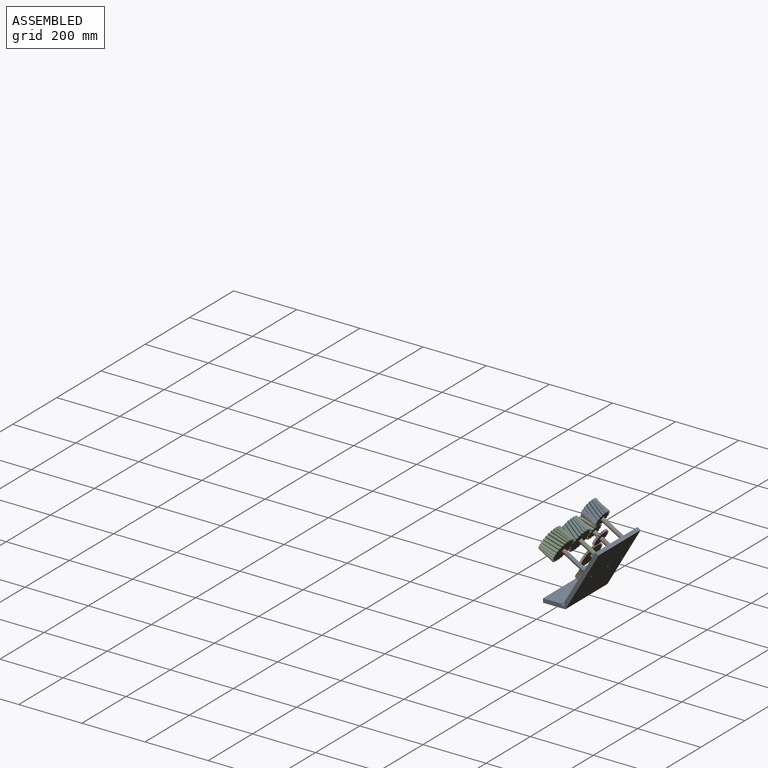
[diagram: assembled view]
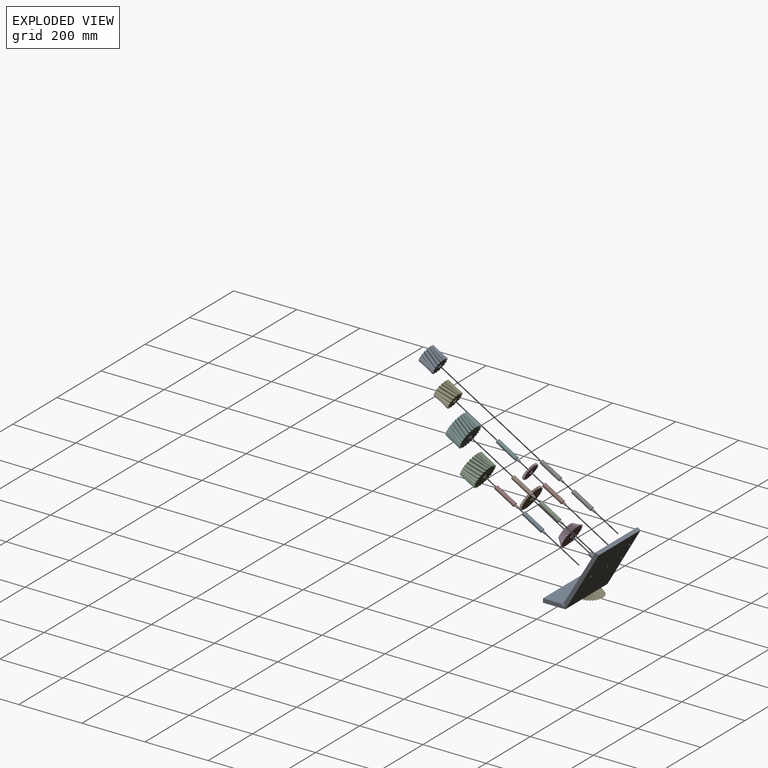
[diagram: exploded view]
GUIDED TOUR — MATED ASSEMBLY (Onshape document b28ac6cc2bc0bf8509f727c4, AutoMate assembly b28ac6cc2bc0bf8509f727c4_57bdf5e7283f3f6957dac1f3_2d047fa930e552a47f79e202_default)

This assembly has 17 components, labeled P0..P16 below (a component is one placed occurrence of a part; the same part can appear more than once), held together by 16 mates. A mate is a constraint between two components; its type names the relative motion it leaves free:
  FASTENED — locks the two components together rigidly (no relative motion),
  REVOLUTE — leaves rotation about the listed axis free (a hinge).
Axis/direction vectors are unit vectors and 'through' points are millimeter coordinates, both in the assembly's world frame.

MATES
  1. REVOLUTE "Revolute 7": P12 <-> P13, axis (-0.864, 0.000, 0.504) through (-116.95, 79.64, 92.24) mm
  2. REVOLUTE "Revolute 5": P9 <-> P0, axis (-0.864, 0.000, 0.504) through (-87.12, 79.64, 1.38) mm
  3. REVOLUTE "Revolute 6": P11 <-> P7, axis (-0.864, 0.000, 0.504) through (-56.62, 79.64, 57.04) mm
  4. REVOLUTE "Revolute 8": P16 <-> P14, axis (-0.864, 0.000, 0.504) through (-91.36, 79.64, 136.12) mm
  5. REVOLUTE "Revolute 2": P4 <-> P0, axis (0.000, 0.000, -1.000) through (-85.58, 79.64, -65.93) mm
  6. FASTENED "Fastened 5": P6 <-> P0, direction (-0.864, 0.000, 0.504) through (29.31, 79.64, 65.73) mm
  7. REVOLUTE "Revolute 1": P3 <-> P0, axis (0.864, 0.000, -0.504) through (-28.25, 79.64, -32.96) mm
  8. FASTENED "Fastened 4": P7 <-> P0, direction (0.864, 0.000, -0.504) through (3.72, 79.64, 21.85) mm
  9. FASTENED "Fastened 6": P15 <-> P8, direction (0.864, 0.000, -0.504) through (-56.62, -60.06, 57.04) mm
  10. REVOLUTE "Revolute 4": P5 <-> P1, axis (-0.864, 0.000, 0.504) through (-116.95, 16.14, 92.24) mm
  11. FASTENED "Fastened 2": P8 <-> P0, direction (0.864, 0.000, -0.504) through (3.72, -60.06, 21.85) mm
  12. FASTENED "Fastened 9": P14 <-> P6, direction (0.864, 0.000, -0.504) through (-31.02, 79.64, 100.92) mm
  13. REVOLUTE "Revolute 3": P2 <-> P15, axis (-0.864, 0.000, 0.504) through (-116.95, -60.06, 92.24) mm
  14. FASTENED "Fastened 3": P10 <-> P0, direction (0.864, 0.000, -0.504) through (3.72, 16.14, 21.85) mm
  15. FASTENED "Fastened 7": P13 <-> P7, direction (0.864, 0.000, -0.504) through (-56.62, 79.64, 57.04) mm
  16. FASTENED "Fastened 8": P1 <-> P10, direction (0.864, 0.000, -0.504) through (-56.62, 16.14, 57.04) mm

ASSEMBLY ORDER
  1. P0 — the base component [order heuristic]
  2. P3 — core [order heuristic]
  3. P4 — core [order heuristic]
  4. P6 — core [order heuristic]
  5. P7 — core [order heuristic]
  6. P8 — core [order heuristic]
  7. P10 — core [order heuristic]
  8. P1 — core [order heuristic]
  9. P11 — core [order heuristic]
  10. P13 — core [order heuristic]
  11. P14 — core [order heuristic]
  12. P15 — core [order heuristic]
  13. P2 — core [order heuristic]
  14. P5 — core [order heuristic]
  15. P12 — core [order heuristic]
  16. P16 — core [order heuristic]
  17. P9 [order verified]
Order-tag legend:
  [order verified] — this step's position reverses a verified removal order: the component was checked to insert without passing through the ones already placed.
  [order heuristic] — the first 16 components form the assembly's core: parts whose collision-free extraction could not be verified, listed in mate-graph order.

Of the 17 components, 11 carry the full construction recipe — the FeatureScript program that regenerates the part's solid from scratch; the rest are supplied as boundary geometry only.
Because this assembly has more than 12 components, the tour below covers the 12 most significant ones individually (every recipe-attached component first, then the largest by part volume), in assembly order; the remaining 5 are summarized together in a grouped section at the end.
Each toured component is shown spotlighted twice — in the assembled view, then in the exploded view, where a leader line traces a displaced component back to its assembled socket (saturated green if recipe-attached, orange if geometry-only; every other component desaturated gray) — followed by its recipe or geometry summary and the mates that hold it.
NOTE — this tour is split across 2 documents so each fits a 32k-token context. This is document 1: the component sections continue in the remaining 1 document, each repeating the header above.
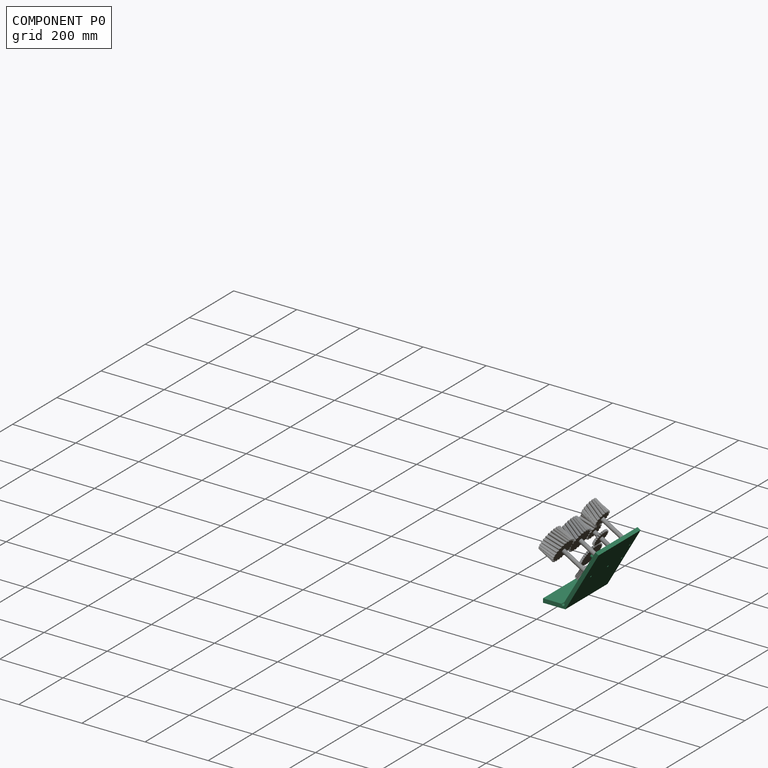
[diagram: component P0 — assembled]
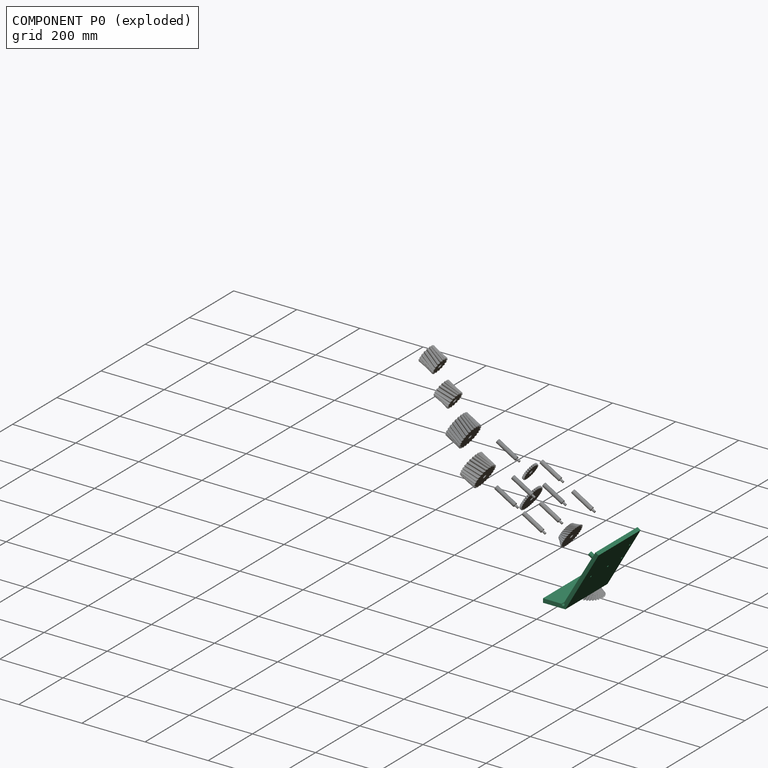
[diagram: component P0 — exploded]
COMPONENT P0 — recipe-attached (CADFS 00306251, mesh-verified: the recipe's output STEP matches this component's geometry to below the mesh-comparison resolution (tessellation chordal tolerance ~0.481 mm)).
Held by: REVOLUTE mate "Revolute 5" to P9; REVOLUTE mate "Revolute 2" to P4; FASTENED mate "Fastened 5" to P6; REVOLUTE mate "Revolute 1" to P3; FASTENED mate "Fastened 4" to P7; FASTENED mate "Fastened 2" to P8; FASTENED mate "Fastened 3" to P10.
Construction recipe (FeatureScript — the CAD program that rebuilds this solid; sketch coordinates are in the units given by the * unit suffixes, e.g. mm):

FeatureScript 1511;
import(path : "onshape/std/geometry.fs", version : "1511.0");
import(path : "onshape/std/common.fs", version : "1511.0");
const mm = millimeter;
const VERTEX = EntityType.VERTEX;
const EDGE = EntityType.EDGE;
const FACE = EntityType.FACE;
const BODY = EntityType.BODY;
function v(x, y){return vector(x, y);}
function OD(order){return orderDisambiguation(order);}
function OSD(set){return originalSetDisambiguation(set);}
function TD(topology){return topologyDisambiguation(topology);}
function TDD(query){return trueDependencyDisambiguation(query);}
function sQuery(a, b, c) {return sketchEntityQuery(a, b, c);}

annotation { "Feature Type Name" : "Feature", "Feature Type Description" : "" }
export const myFeature = defineFeature(function(context is Context, id is Id, definition is map)
    precondition{}
    {
        {
            var Q0;
            Q0=qCreatedBy(makeId("Front.planeOp"),FACE);
            var sketch = newSketch(context, id + "F0", { "sketchPlane" : qUnion([Q0])});
            skLineSegment(sketch, "E0", {"start": v(0, 0) * mm, "end": v(70.84, 0) * mm});
            skLineSegment(sketch, "E1.0", {"start": v(0, 12.7) * mm, "end": v(58.74, 12.7) * mm});
            skLineSegment(sketch, "E2", {"start": v(0, 0) * mm, "end": v(0, 12.7) * mm});
            skArc(sketch, "E3", {"start": v(58.74, 12.7) * mm, "mid": v(65.87, 8.57) * mm, "end": v(65.9, 16.81) * mm});
            skLineSegment(sketch, "E4", {"start": v(70.84, 0) * mm, "end": v(176.11, 182.33) * mm});
            skLineSegment(sketch, "E5", {"start": v(176.11, 182.33) * mm, "end": v(165.9, 188.23) * mm});
            skLineSegment(sketch, "E6", {"start": v(165.9, 188.23) * mm, "end": v(65.9, 16.81) * mm});
            skSolve(sketch);
        }
        {
            var Q0;
            Q0 = qSketchRegion(id + "F0", true);
            extrude(context, id + "F1", {"entities" : qUnion([Q0]), "depth" : 190.5 * mm});
        }
        {
            var Q0;
            Q0=makeQuery(id+"F1.opExtrude","SWEPT_FACE",FACE,{"disambiguationData":[OSD([sQuery(id+"F0.wireOp",EDGE,"E1.0")])]});
            var sketch = newSketch(context, id + "F2", { "sketchPlane" : qUnion([Q0])});
            skLineSegment(sketch, "E7", {"start": v(0, 0) * mm, "end": v(25.4, 0) * mm});
            skLineSegment(sketch, "E8", {"start": v(25.4, 0) * mm, "end": v(25.4, -12.7) * mm});
            skCircle(sketch, "E9", {"center": v(25.4, -12.7) * mm, "radius": 6.35 * mm});
            skSolve(sketch);
        }
        {
            var Q0;
            Q0 = qSketchRegion(id + "F2", true);
            extrude(context, id + "F3", {"entities" : qUnion([Q0]), "operationType" : NewBodyOperationType.ADD, "depth" : 22 * mm});
        }
        {
            var Q0;
            Q0=makeQuery(id+"F1.opExtrude","SWEPT_FACE",FACE,{"disambiguationData":[OSD([sQuery(id+"F0.wireOp",EDGE,"E6")])]});
            var sketch = newSketch(context, id + "F4", { "sketchPlane" : qUnion([Q0])});
            skCircle(sketch, "E10", {"center": v(12.7, 195.38) * mm, "radius": 3.17 * mm});
            skCircle(sketch, "E11", {"center": v(12.7, 144.58) * mm, "radius": 3.18 * mm});
            skCircle(sketch, "E12", {"center": v(76.2, 144.58) * mm, "radius": 3.18 * mm});
            skCircle(sketch, "E13", {"center": v(152.4, 144.58) * mm, "radius": 3.18 * mm});
            skCircle(sketch, "E14", {"center": v(12.7, 81.13) * mm, "radius": 6.35 * mm});
            skSolve(sketch);
        }
        {
            var Q0;
            Q0=makeQuery(id+"F4.imprint","IMPRINT",FACE,{"disambiguationData":[TD([[makeQuery(id+"F4.imprint","IMPRINT",EDGE,{"derivedFrom":sQuery(id+"F4.wireOp",EDGE,"E14")}),1.0]])]});
            extrude(context, id + "F5", {"entities" : qUnion([Q0]), "operationType" : NewBodyOperationType.ADD, "depth" : 68.15 * mm});
        }
        {
            var Q0;
            Q0=sQuery(id+"F4.wireOp",VERTEX,"E10.center");
            var Q1;
            Q1=sQuery(id+"F4.wireOp",VERTEX,"E11.center");
            var Q2;
            Q2=sQuery(id+"F4.wireOp",VERTEX,"E12.center");
            var Q3;
            Q3=sQuery(id+"F4.wireOp",VERTEX,"E13.center");
            var Q4;
            Q4=makeQuery(id+"F1.opExtrude","SWEPT_BODY",BODY,{"disambiguationData":[OSD([sQuery(id+"F0.wireOp",EDGE,"E0"),sQuery(id+"F0.wireOp",EDGE,"E1.0"),sQuery(id+"F0.wireOp",EDGE,"E2"),sQuery(id+"F0.wireOp",EDGE,"E3"),sQuery(id+"F0.wireOp",EDGE,"E4"),sQuery(id+"F0.wireOp",EDGE,"E5"),sQuery(id+"F0.wireOp",EDGE,"E6")])]});
            hole(context, id + "F6", {"style" : HoleStyle.SIMPLE, "endStyle" : HoleEndStyle.THROUGH, "holeDiameter" : 6.35 * mm, "tappedDepth" : 12.7 * mm, "tapClearance" : 3, "locations" : qUnion([Q0, Q1, Q2, Q3]), "scope" : qUnion([Q4])});
        }
    });
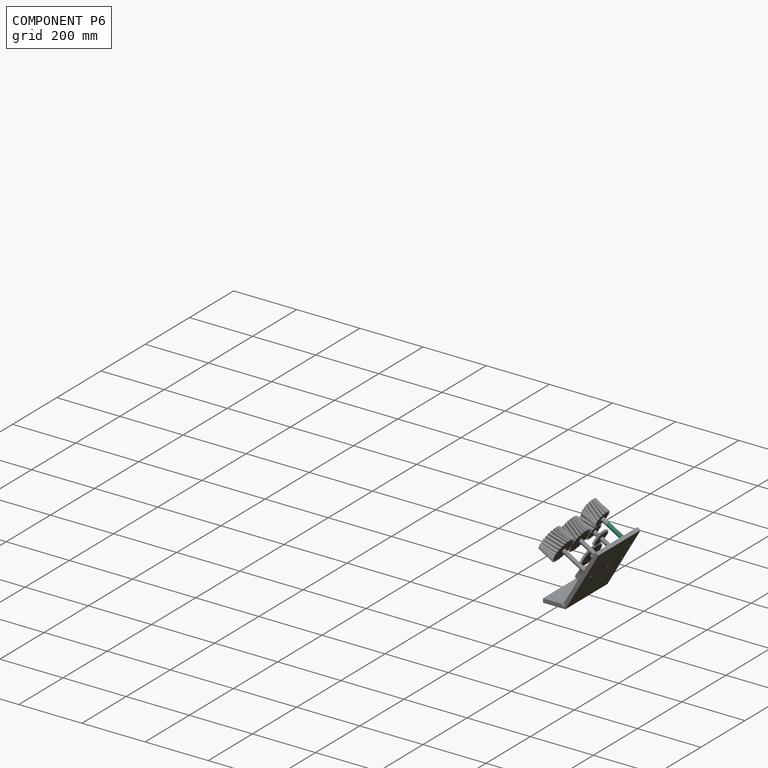
[diagram: component P6 — assembled]
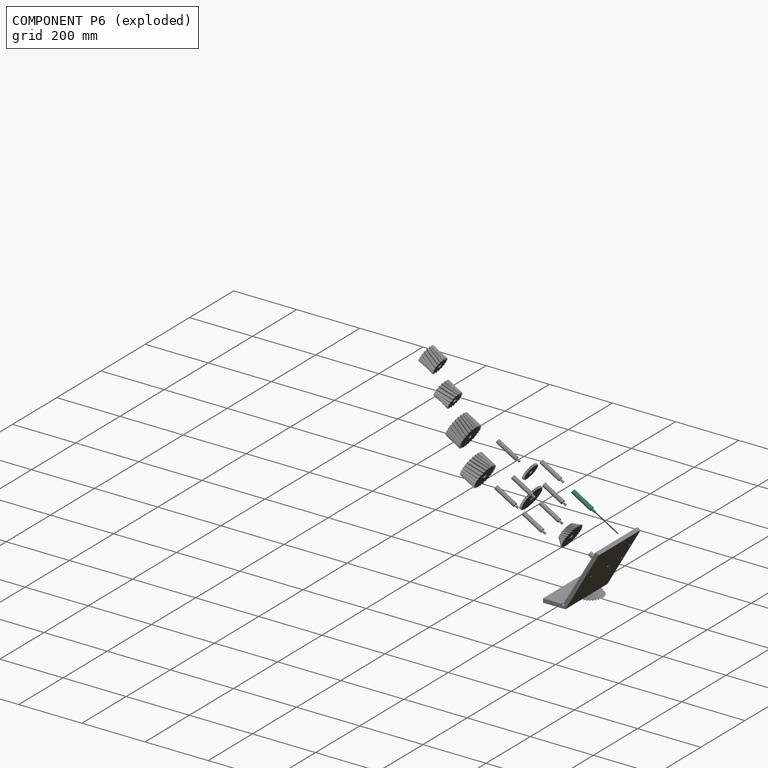
[diagram: component P6 — exploded]
COMPONENT P6 — same part as P1 (CADFS 00306252); its construction recipe is shown at P1.
Held by: FASTENED mate "Fastened 5" to P0; FASTENED mate "Fastened 9" to P14.
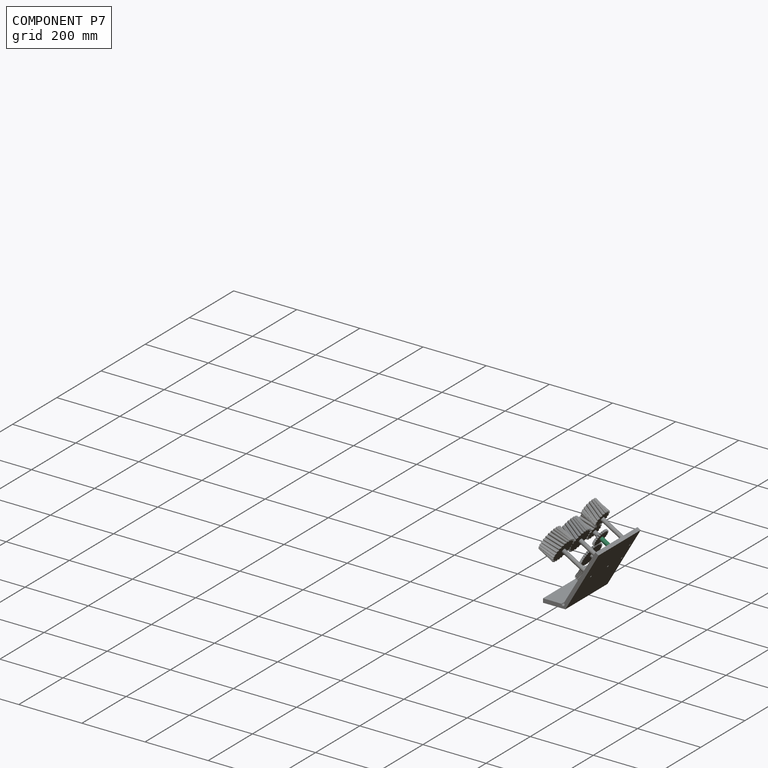
[diagram: component P7 — assembled]
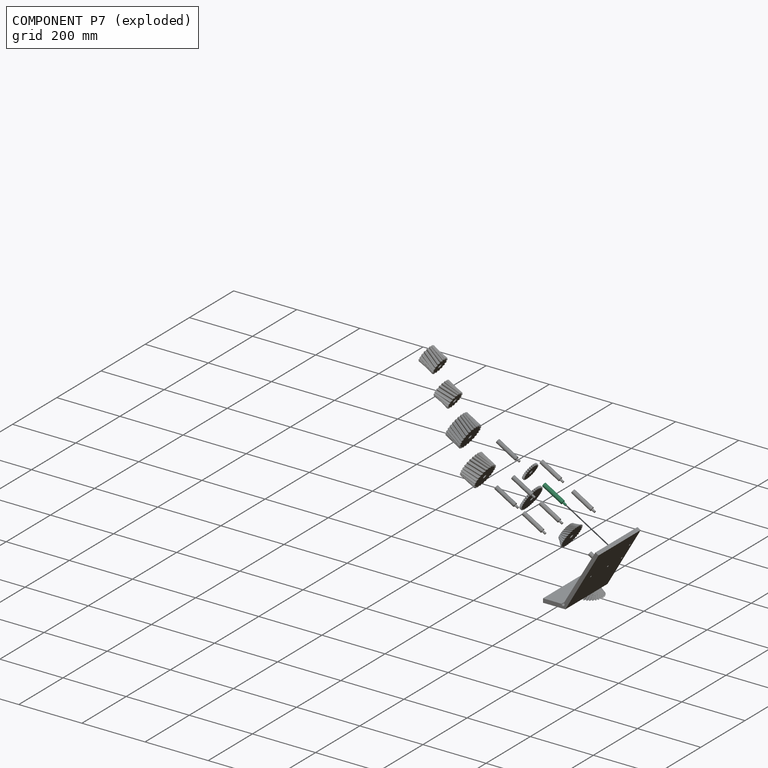
[diagram: component P7 — exploded]
COMPONENT P7 — same part as P1 (CADFS 00306252); its construction recipe is shown at P1.
Held by: REVOLUTE mate "Revolute 6" to P11; FASTENED mate "Fastened 4" to P0; FASTENED mate "Fastened 7" to P13.
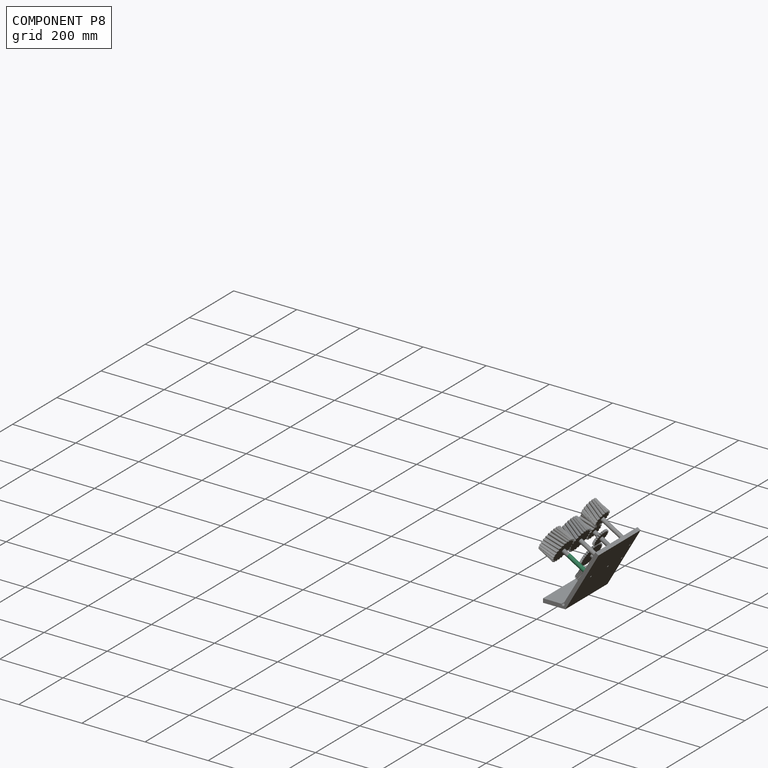
[diagram: component P8 — assembled]
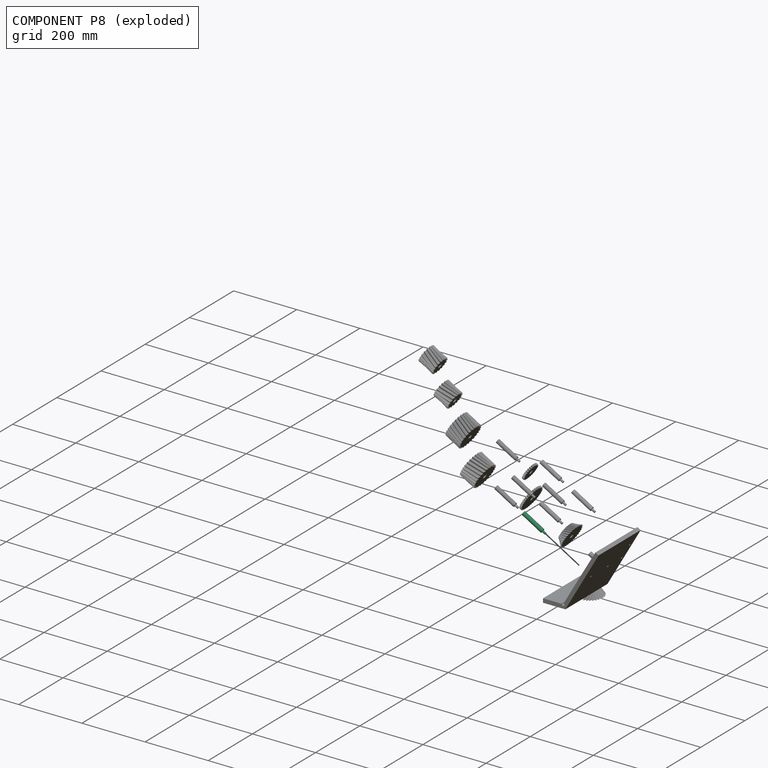
[diagram: component P8 — exploded]
COMPONENT P8 — same part as P1 (CADFS 00306252); its construction recipe is shown at P1.
Held by: FASTENED mate "Fastened 6" to P15; FASTENED mate "Fastened 2" to P0.
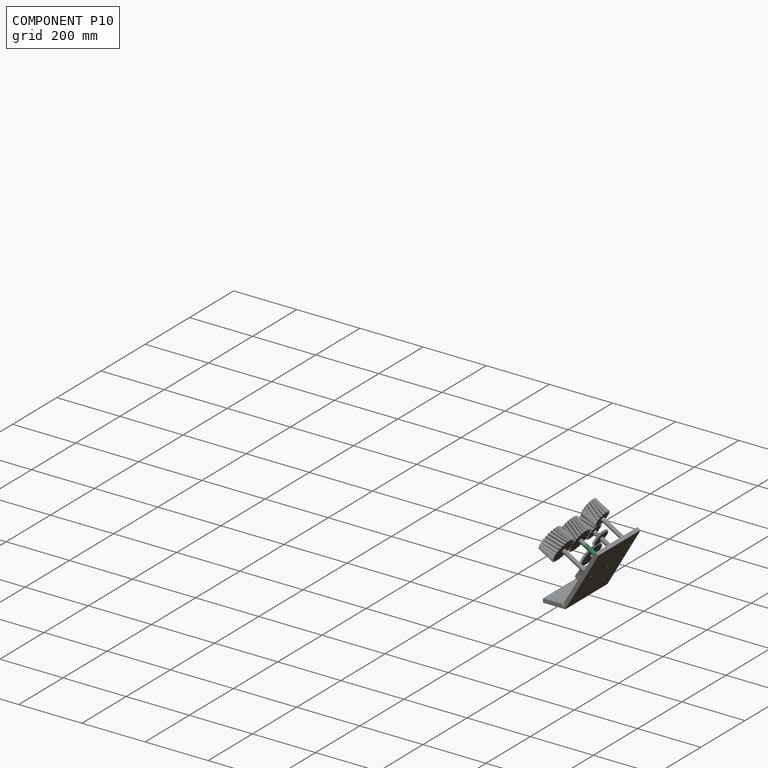
[diagram: component P10 — assembled]
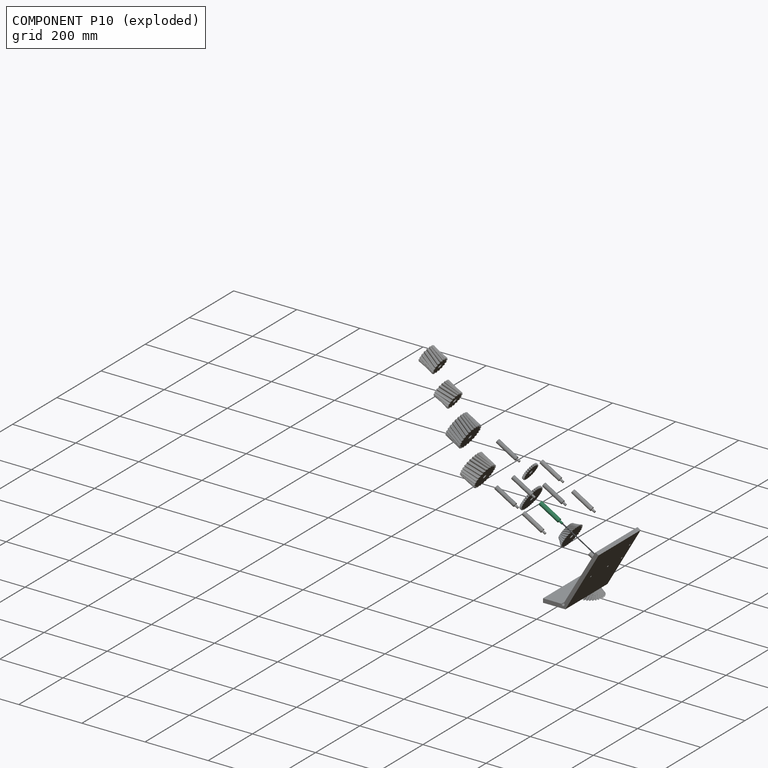
[diagram: component P10 — exploded]
COMPONENT P10 — same part as P1 (CADFS 00306252); its construction recipe is shown at P1.
Held by: FASTENED mate "Fastened 3" to P0; FASTENED mate "Fastened 8" to P1.
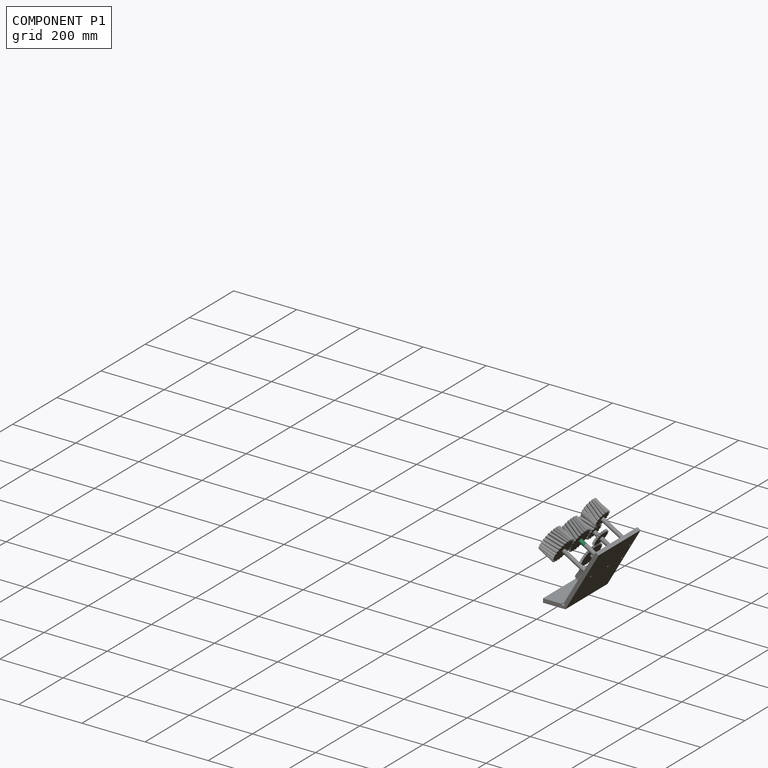
[diagram: component P1 — assembled]
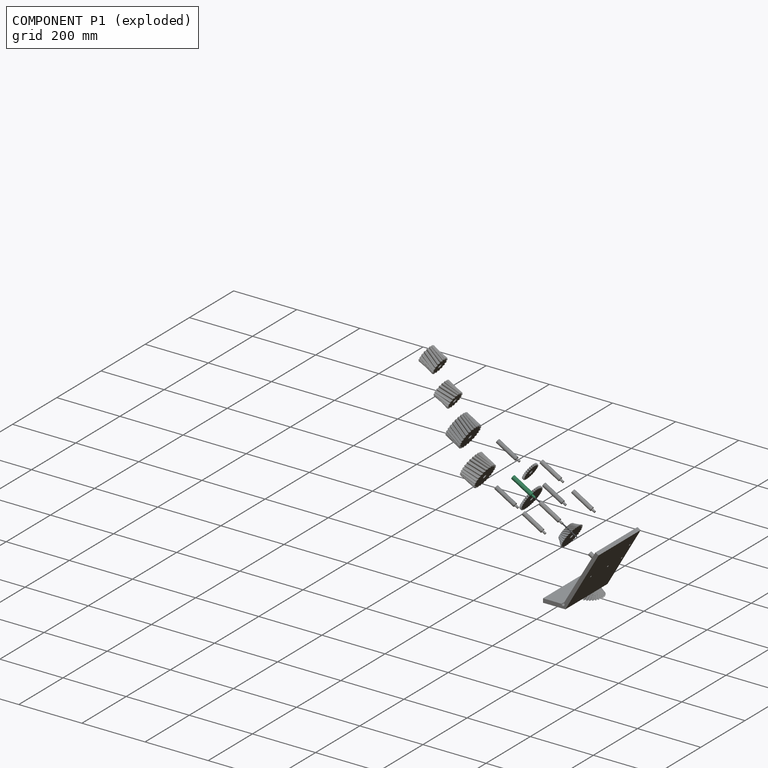
[diagram: component P1 — exploded]
COMPONENT P1 — recipe-attached (CADFS 00306252, mesh-verified: the recipe's output STEP matches this component's geometry to below the mesh-comparison resolution (tessellation chordal tolerance ~0.124 mm)).
Held by: REVOLUTE mate "Revolute 4" to P5; FASTENED mate "Fastened 8" to P10.
Construction recipe (FeatureScript — the CAD program that rebuilds this solid; sketch coordinates are in the units given by the * unit suffixes, e.g. mm):

FeatureScript 1511;
import(path : "onshape/std/geometry.fs", version : "1511.0");
import(path : "onshape/std/common.fs", version : "1511.0");
const mm = millimeter;
const VERTEX = EntityType.VERTEX;
const EDGE = EntityType.EDGE;
const FACE = EntityType.FACE;
const BODY = EntityType.BODY;
function v(x, y){return vector(x, y);}
function OD(order){return orderDisambiguation(order);}
function OSD(set){return originalSetDisambiguation(set);}
function TD(topology){return topologyDisambiguation(topology);}
function TDD(query){return trueDependencyDisambiguation(query);}
function sQuery(a, b, c) {return sketchEntityQuery(a, b, c);}

annotation { "Feature Type Name" : "Feature", "Feature Type Description" : "" }
export const myFeature = defineFeature(function(context is Context, id is Id, definition is map)
    precondition{}
    {
        {
            var Q0;
            Q0=qCreatedBy(makeId("Front.planeOp"),FACE);
            var sketch = newSketch(context, id + "F0", { "sketchPlane" : qUnion([Q0])});
            skCircle(sketch, "E0", {"center": v(0, 0) * mm, "radius": 6.35 * mm});
            skSolve(sketch);
        }
        {
            var Q0;
            Q0 = qSketchRegion(id + "F0", true);
            extrude(context, id + "F1", {"entities" : qUnion([Q0]), "depth" : 69.85 * mm});
        }
        {
            var Q0;
            Q0=makeQuery(id+"F1.opExtrude","CAP_FACE",FACE,{"disambiguationData":[OSD([sQuery(id+"F0.wireOp",EDGE,"E0")])],"isStart":false});
            var sketch = newSketch(context, id + "F2", { "sketchPlane" : qUnion([Q0])});
            skCircle(sketch, "E1", {"center": v(0, 0) * mm, "radius": 3.18 * mm});
            skSolve(sketch);
        }
        {
            var Q0;
            Q0 = qSketchRegion(id + "F2", true);
            extrude(context, id + "F3", {"entities" : qUnion([Q0]), "operationType" : NewBodyOperationType.ADD, "depth" : 11 * mm});
        }
        {
            var Q0;
            Q0=makeQuery(id+"F1.opExtrude","CAP_FACE",FACE,{"disambiguationData":[OSD([sQuery(id+"F0.wireOp",EDGE,"E0")])],"isStart":true});
            var sketch = newSketch(context, id + "F4", { "sketchPlane" : qUnion([Q0])});
            skCircle(sketch, "E2", {"center": v(0, 0) * mm, "radius": 2.76 * mm});
            skSolve(sketch);
        }
        {
            var Q0;
            Q0=makeQuery(id+"F4.imprint","IMPRINT",FACE,{"disambiguationData":[TD([[makeQuery(id+"F4.imprint","IMPRINT",EDGE,{"derivedFrom":sQuery(id+"F4.wireOp",EDGE,"E2")}),1.0]])]});
            extrude(context, id + "F5", {"entities" : qUnion([Q0]), "operationType" : NewBodyOperationType.REMOVE, "oppositeDirection" : true, "depth" : 12.7 * mm});
        }
    });
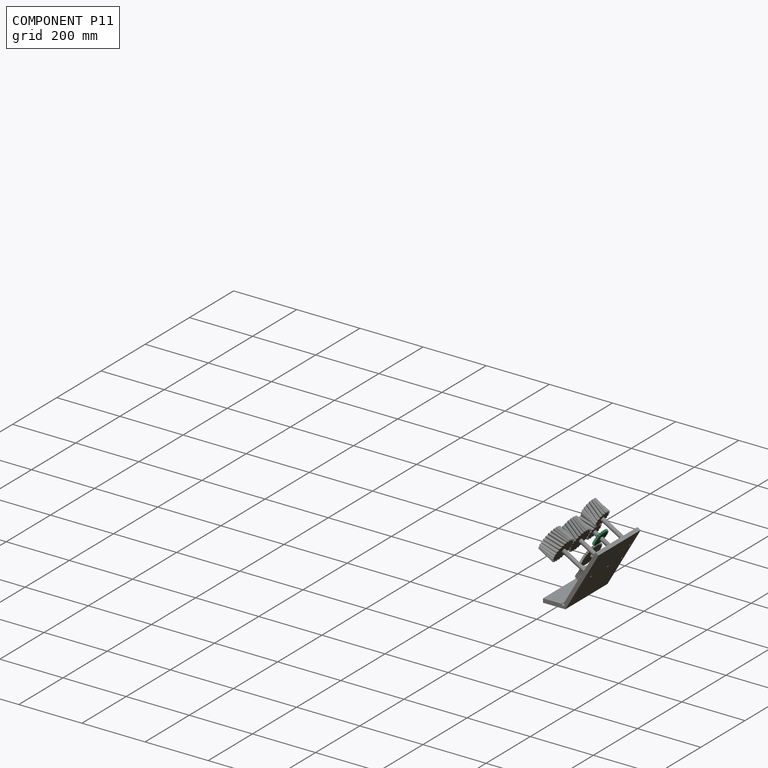
[diagram: component P11 — assembled]
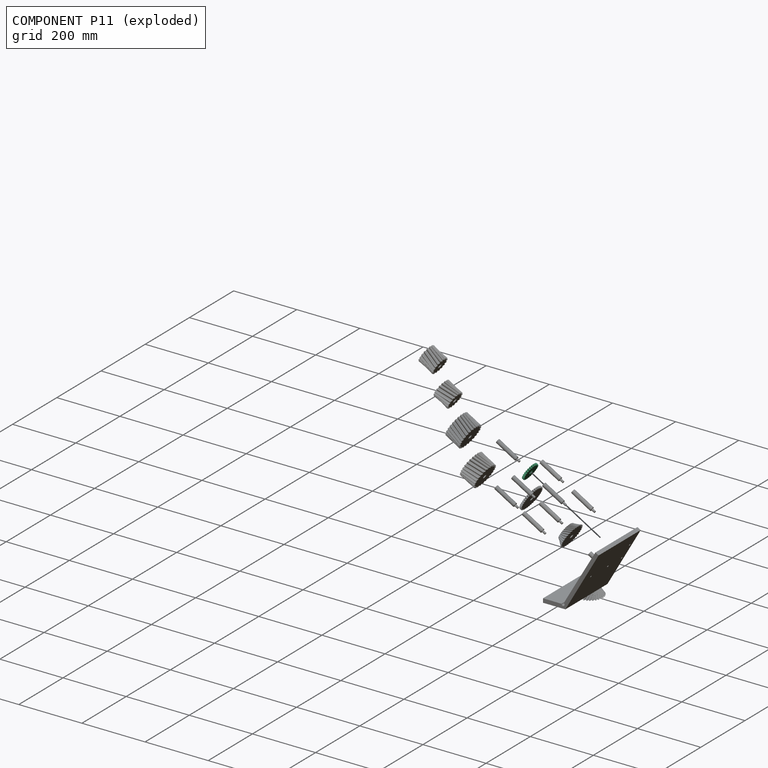
[diagram: component P11 — exploded]
COMPONENT P11 — recipe-attached (CADFS 00306247, mesh-verified: the recipe's output STEP matches this component's geometry to below the mesh-comparison resolution (tessellation chordal tolerance ~0.117 mm)).
Held by: REVOLUTE mate "Revolute 6" to P7.
Construction recipe (FeatureScript — the CAD program that rebuilds this solid; sketch coordinates are in the units given by the * unit suffixes, e.g. mm):

FeatureScript 1511;
import(path : "onshape/std/geometry.fs", version : "1511.0");
import(path : "onshape/std/common.fs", version : "1511.0");
const mm = millimeter;
const VERTEX = EntityType.VERTEX;
const EDGE = EntityType.EDGE;
const FACE = EntityType.FACE;
const BODY = EntityType.BODY;
function v(x, y){return vector(x, y);}
function OD(order){return orderDisambiguation(order);}
function OSD(set){return originalSetDisambiguation(set);}
function TD(topology){return topologyDisambiguation(topology);}
function TDD(query){return trueDependencyDisambiguation(query);}
function sQuery(a, b, c) {return sketchEntityQuery(a, b, c);}

annotation { "Feature Type Name" : "Feature", "Feature Type Description" : "" }
export const myFeature = defineFeature(function(context is Context, id is Id, definition is map)
    precondition{}
    {
        {
            var Q0;
            Q0=qCreatedBy(makeId("Front.planeOp"),FACE);
            var sketch = newSketch(context, id + "F0", { "sketchPlane" : qUnion([Q0])});
            skCircle(sketch, "E0", {"center": v(0, 0) * mm, "radius": 23.28 * mm});
            skSolve(sketch);
        }
        {
            var Q0;
            Q0=qSketchRegion(id+"F0",true);
            extrude(context, id + "F1", {"entities" : qUnion([Q0]), "depth" : 3.17 * mm});
        }
        {
            var Q0;
            Q0=makeQuery(id+"F1.opExtrude","CAP_FACE",FACE,{"disambiguationData":[OSD([sQuery(id+"F0.wireOp",EDGE,"E0")])],"isStart":true});
            extrude(context, id + "F2", {"entities" : qUnion([Q0]), "operationType" : NewBodyOperationType.ADD, "depth" : 3.17 * mm});
        }
        {
            var Q0;
            Q0=makeQuery(id+"F1.opExtrude","CAP_FACE",FACE,{"disambiguationData":[OSD([sQuery(id+"F0.wireOp",EDGE,"E0")])],"isStart":false});
            var sketch = newSketch(context, id + "F3", { "sketchPlane" : qUnion([Q0])});
            skArc(sketch, "E1.trimOffspring", {"start": v(-0.14, 25.48) * mm, "mid": v(-0.74, 26.53) * mm, "end": v(-1.53, 27.45) * mm});
            skLineSegment(sketch, "E2", {"start": v(-1.58, 27.47) * mm, "end": v(-1.8, 27.47) * mm});
            skLineSegment(sketch, "E3", {"start": v(0, 24.83) * mm, "end": v(0, 24.82) * mm});
            skLineSegment(sketch, "E4.MirrorCS", {"start": v(-2.01, 27.44) * mm, "end": v(-1.8, 27.47) * mm});
            skArc(sketch, "E5.MirrorCS", {"start": v(-3.19, 25.28) * mm, "mid": v(-2.73, 26.4) * mm, "end": v(-2.07, 27.41) * mm});
            skLineSegment(sketch, "E6.MirrorCS", {"start": v(-3.24, 24.62) * mm, "end": v(-3.24, 24.6) * mm});
            skArc(sketch, "E7.filletArc", {"start": v(-3.21, 23.06) * mm, "mid": v(-3.1, 23.13) * mm, "end": v(-3.06, 23.26) * mm});
            skArc(sketch, "E8.filletArc", {"start": v(-4.5, 22.84) * mm, "mid": v(-3.52, 23.47) * mm, "end": v(-3.24, 24.6) * mm});
            skArc(sketch, "E9.filletArc", {"start": v(0, 24.82) * mm, "mid": v(0.43, 23.73) * mm, "end": v(1.49, 23.24) * mm});
            skPoint(sketch, "E10.visualSharp", {"position": v(0, 25.15) * mm});
            skArc(sketch, "E10.filletArc", {"start": v(0, 24.83) * mm, "mid": v(-0.04, 25.16) * mm, "end": v(-0.14, 25.48) * mm});
            skPoint(sketch, "E11.visualSharp", {"position": v(-3.28, 24.93) * mm});
            skArc(sketch, "E11.filletArc", {"start": v(-3.19, 25.28) * mm, "mid": v(-3.25, 24.95) * mm, "end": v(-3.24, 24.62) * mm});
            skPoint(sketch, "E12.visualSharp", {"position": v(-2.05, 27.44) * mm});
            skArc(sketch, "E13.filletArc", {"start": v(-2.01, 27.44) * mm, "mid": v(-2.04, 27.43) * mm, "end": v(-2.07, 27.41) * mm});
            skPoint(sketch, "E14.visualSharp", {"position": v(-1.55, 27.47) * mm});
            skArc(sketch, "E14.filletArc", {"start": v(-1.53, 27.45) * mm, "mid": v(-1.55, 27.47) * mm, "end": v(-1.58, 27.47) * mm});
            skArc(sketch, "E15.1.0", {"start": v(-9.62, 23.6) * mm, "mid": v(-9.47, 24.8) * mm, "end": v(-9.1, 25.94) * mm});
            skArc(sketch, "E15.1.1", {"start": v(-6.42, 23.97) * mm, "mid": v(-5.73, 23.04) * mm, "end": v(-4.58, 22.83) * mm});
            skArc(sketch, "E15.1.2", {"start": v(-6.73, 24.58) * mm, "mid": v(-7.58, 25.44) * mm, "end": v(-8.58, 26.12) * mm});
            skPoint(sketch, "E15.1.3", {"position": v(-6.5, 24.29) * mm});
            skPoint(sketch, "E15.1.4", {"position": v(-9.62, 23.23) * mm});
            skPoint(sketch, "E15.1.5", {"position": v(-9.08, 25.98) * mm});
            skPoint(sketch, "E15.1.6", {"position": v(-8.6, 26.14) * mm});
            skArc(sketch, "E15.1.7", {"start": v(-10.27, 20.9) * mm, "mid": v(-9.48, 21.76) * mm, "end": v(-9.5, 22.93) * mm});
            skArc(sketch, "E15.1.8", {"start": v(-9.07, 21.44) * mm, "mid": v(-8.98, 21.54) * mm, "end": v(-8.98, 21.67) * mm});
            skArc(sketch, "E15.1.9", {"start": v(-6.43, 23.98) * mm, "mid": v(-6.55, 24.3) * mm, "end": v(-6.73, 24.58) * mm});
            skArc(sketch, "E15.1.10", {"start": v(-9.62, 23.6) * mm, "mid": v(-9.6, 23.26) * mm, "end": v(-9.5, 22.94) * mm});
            skLineSegment(sketch, "E15.1.11", {"start": v(-9.5, 22.94) * mm, "end": v(-9.5, 22.93) * mm});
            skLineSegment(sketch, "E15.1.12", {"start": v(-6.43, 23.98) * mm, "end": v(-6.42, 23.97) * mm});
            skLineSegment(sketch, "E15.1.13", {"start": v(-9.05, 25.99) * mm, "end": v(-8.85, 26.07) * mm});
            skArc(sketch, "E15.1.14", {"start": v(-9.05, 25.99) * mm, "mid": v(-9.08, 25.97) * mm, "end": v(-9.1, 25.94) * mm});
            skArc(sketch, "E15.1.15", {"start": v(-8.58, 26.12) * mm, "mid": v(-8.6, 26.13) * mm, "end": v(-8.64, 26.13) * mm});
            skLineSegment(sketch, "E15.1.16", {"start": v(-8.64, 26.13) * mm, "end": v(-8.85, 26.07) * mm});
            skArc(sketch, "E15.2.0", {"start": v(-15.4, 20.3) * mm, "mid": v(-15.57, 21.5) * mm, "end": v(-15.5, 22.7) * mm});
            skArc(sketch, "E15.2.1", {"start": v(-12.41, 21.5) * mm, "mid": v(-11.5, 20.77) * mm, "end": v(-10.33, 20.87) * mm});
            skArc(sketch, "E15.2.2", {"start": v(-12.86, 22) * mm, "mid": v(-13.9, 22.6) * mm, "end": v(-15.05, 23) * mm});
            skPoint(sketch, "E15.2.3", {"position": v(-12.57, 21.78) * mm});
            skPoint(sketch, "E15.2.4", {"position": v(-15.3, 19.95) * mm});
            skPoint(sketch, "E15.2.5", {"position": v(-15.5, 22.74) * mm});
            skPoint(sketch, "E15.2.6", {"position": v(-15.08, 23.02) * mm});
            skArc(sketch, "E15.2.7", {"start": v(-15.32, 17.53) * mm, "mid": v(-14.79, 18.57) * mm, "end": v(-15.1, 19.7) * mm});
            skArc(sketch, "E15.2.8", {"start": v(-14.31, 18.36) * mm, "mid": v(-14.25, 18.48) * mm, "end": v(-14.28, 18.61) * mm});
            skArc(sketch, "E15.2.9", {"start": v(-12.42, 21.5) * mm, "mid": v(-12.61, 21.77) * mm, "end": v(-12.86, 22) * mm});
            skArc(sketch, "E15.2.10", {"start": v(-15.4, 20.3) * mm, "mid": v(-15.3, 19.99) * mm, "end": v(-15.12, 19.7) * mm});
            skLineSegment(sketch, "E15.2.11", {"start": v(-15.12, 19.7) * mm, "end": v(-15.1, 19.7) * mm});
            skLineSegment(sketch, "E15.2.12", {"start": v(-12.42, 21.5) * mm, "end": v(-12.41, 21.5) * mm});
            skLineSegment(sketch, "E15.2.13", {"start": v(-15.47, 22.76) * mm, "end": v(-15.3, 22.9) * mm});
            skArc(sketch, "E15.2.14", {"start": v(-15.47, 22.76) * mm, "mid": v(-15.49, 22.74) * mm, "end": v(-15.5, 22.7) * mm});
            skArc(sketch, "E15.2.15", {"start": v(-15.05, 23) * mm, "mid": v(-15.08, 23.01) * mm, "end": v(-15.1, 23) * mm});
            skLineSegment(sketch, "E15.2.16", {"start": v(-15.1, 23) * mm, "end": v(-15.3, 22.9) * mm});
            skPoint(sketch, "E15.center", {"position": v(0, 0) * mm});
            skArc(sketch, "E16.4.3.0", {"start": v(-17.55, 17.55) * mm, "mid": v(-16.48, 17.09) * mm, "end": v(-15.38, 17.48) * mm});
            skArc(sketch, "E16.8.3.0", {"start": v(-18.12, 17.92) * mm, "mid": v(-19.29, 18.24) * mm, "end": v(-20.5, 18.33) * mm});
            skArc(sketch, "E16.9.3.0", {"start": v(-20.13, 15.62) * mm, "mid": v(-20.6, 16.74) * mm, "end": v(-20.85, 17.92) * mm});
            skPoint(sketch, "E16.12.3.0", {"position": v(-17.78, 17.78) * mm});
            skPoint(sketch, "E16.13.3.0", {"position": v(-19.95, 15.3) * mm});
            skPoint(sketch, "E16.14.3.0", {"position": v(-20.85, 17.96) * mm});
            skPoint(sketch, "E16.15.3.0", {"position": v(-20.52, 18.33) * mm});
            skArc(sketch, "E16.16.3.0", {"start": v(-19.34, 12.97) * mm, "mid": v(-19.1, 14.1) * mm, "end": v(-19.7, 15.1) * mm});
            skArc(sketch, "E16.20.3.0", {"start": v(-18.58, 14.03) * mm, "mid": v(-18.54, 14.16) * mm, "end": v(-18.61, 14.28) * mm});
            skArc(sketch, "E16.24.3.0", {"start": v(-17.56, 17.56) * mm, "mid": v(-17.82, 17.77) * mm, "end": v(-18.12, 17.92) * mm});
            skArc(sketch, "E16.28.3.0", {"start": v(-20.13, 15.62) * mm, "mid": v(-19.94, 15.35) * mm, "end": v(-19.7, 15.12) * mm});
            skLineSegment(sketch, "E16.32.3.0", {"start": v(-19.7, 15.12) * mm, "end": v(-19.7, 15.1) * mm});
            skLineSegment(sketch, "E16.35.3.0", {"start": v(-17.56, 17.56) * mm, "end": v(-17.55, 17.55) * mm});
            skLineSegment(sketch, "E16.38.3.0", {"start": v(-20.83, 17.98) * mm, "end": v(-20.7, 18.15) * mm});
            skArc(sketch, "E16.41.3.0", {"start": v(-20.83, 17.98) * mm, "mid": v(-20.85, 17.95) * mm, "end": v(-20.85, 17.92) * mm});
            skArc(sketch, "E16.45.3.0", {"start": v(-20.5, 18.33) * mm, "mid": v(-20.52, 18.32) * mm, "end": v(-20.54, 18.3) * mm});
            skLineSegment(sketch, "E16.49.3.0", {"start": v(-20.54, 18.3) * mm, "end": v(-20.7, 18.15) * mm});
            skArc(sketch, "E16.4.4.0", {"start": v(-21.5, 12.41) * mm, "mid": v(-20.34, 12.24) * mm, "end": v(-19.38, 12.9) * mm});
            skArc(sketch, "E16.8.4.0", {"start": v(-22.14, 12.62) * mm, "mid": v(-23.35, 12.63) * mm, "end": v(-24.54, 12.4) * mm});
            skArc(sketch, "E16.9.4.0", {"start": v(-23.49, 9.88) * mm, "mid": v(-24.23, 10.84) * mm, "end": v(-24.78, 11.92) * mm});
            skPoint(sketch, "E16.12.4.0", {"position": v(-21.78, 12.57) * mm});
            skPoint(sketch, "E16.13.4.0", {"position": v(-23.23, 9.62) * mm});
            skPoint(sketch, "E16.14.4.0", {"position": v(-24.79, 11.95) * mm});
            skPoint(sketch, "E16.15.4.0", {"position": v(-24.57, 12.4) * mm});
            skArc(sketch, "E16.16.4.0", {"start": v(-22.04, 7.52) * mm, "mid": v(-22.1, 8.69) * mm, "end": v(-22.93, 9.5) * mm});
            skArc(sketch, "E16.20.4.0", {"start": v(-21.58, 8.75) * mm, "mid": v(-21.58, 8.88) * mm, "end": v(-21.67, 8.98) * mm});
            skArc(sketch, "E16.24.4.0", {"start": v(-21.5, 12.42) * mm, "mid": v(-21.81, 12.55) * mm, "end": v(-22.14, 12.62) * mm});
            skArc(sketch, "E16.28.4.0", {"start": v(-23.49, 9.88) * mm, "mid": v(-23.23, 9.66) * mm, "end": v(-22.94, 9.5) * mm});
            skLineSegment(sketch, "E16.32.4.0", {"start": v(-22.94, 9.5) * mm, "end": v(-22.93, 9.5) * mm});
            skLineSegment(sketch, "E16.35.4.0", {"start": v(-21.5, 12.42) * mm, "end": v(-21.5, 12.41) * mm});
            skLineSegment(sketch, "E16.38.4.0", {"start": v(-24.78, 11.98) * mm, "end": v(-24.7, 12.18) * mm});
            skArc(sketch, "E16.41.4.0", {"start": v(-24.78, 11.98) * mm, "mid": v(-24.78, 11.95) * mm, "end": v(-24.78, 11.92) * mm});
            skArc(sketch, "E16.45.4.0", {"start": v(-24.54, 12.4) * mm, "mid": v(-24.56, 12.39) * mm, "end": v(-24.58, 12.37) * mm});
            skLineSegment(sketch, "E16.49.4.0", {"start": v(-24.58, 12.37) * mm, "end": v(-24.7, 12.18) * mm});
            skArc(sketch, "E16.4.5.0", {"start": v(-23.97, 6.42) * mm, "mid": v(-22.81, 6.56) * mm, "end": v(-22.06, 7.45) * mm});
            skArc(sketch, "E16.8.5.0", {"start": v(-24.65, 6.46) * mm, "mid": v(-25.82, 6.15) * mm, "end": v(-26.91, 5.63) * mm});
            skArc(sketch, "E16.9.5.0", {"start": v(-25.25, 3.47) * mm, "mid": v(-26.2, 4.2) * mm, "end": v(-27.02, 5.1) * mm});
            skPoint(sketch, "E16.12.5.0", {"position": v(-24.29, 6.5) * mm});
            skPoint(sketch, "E16.13.5.0", {"position": v(-24.93, 3.28) * mm});
            skPoint(sketch, "E16.14.5.0", {"position": v(-27.04, 5.12) * mm});
            skPoint(sketch, "E16.15.5.0", {"position": v(-26.94, 5.61) * mm});
            skArc(sketch, "E16.16.5.0", {"start": v(-23.23, 1.56) * mm, "mid": v(-23.59, 2.67) * mm, "end": v(-24.6, 3.24) * mm});
            skArc(sketch, "E16.20.5.0", {"start": v(-23.1, 2.86) * mm, "mid": v(-23.14, 3) * mm, "end": v(-23.26, 3.06) * mm});
            skArc(sketch, "E16.24.5.0", {"start": v(-23.98, 6.43) * mm, "mid": v(-24.32, 6.48) * mm, "end": v(-24.65, 6.46) * mm});
            skArc(sketch, "E16.28.5.0", {"start": v(-25.25, 3.47) * mm, "mid": v(-24.94, 3.32) * mm, "end": v(-24.62, 3.24) * mm});
            skLineSegment(sketch, "E16.32.5.0", {"start": v(-24.62, 3.24) * mm, "end": v(-24.6, 3.24) * mm});
            skLineSegment(sketch, "E16.35.5.0", {"start": v(-23.98, 6.43) * mm, "end": v(-23.97, 6.42) * mm});
            skLineSegment(sketch, "E16.38.5.0", {"start": v(-27.03, 5.16) * mm, "end": v(-27, 5.37) * mm});
            skArc(sketch, "E16.41.5.0", {"start": v(-27.03, 5.16) * mm, "mid": v(-27.03, 5.13) * mm, "end": v(-27.02, 5.1) * mm});
            skArc(sketch, "E16.45.5.0", {"start": v(-26.91, 5.63) * mm, "mid": v(-26.93, 5.6) * mm, "end": v(-26.95, 5.58) * mm});
            skLineSegment(sketch, "E16.49.5.0", {"start": v(-26.95, 5.58) * mm, "end": v(-27, 5.37) * mm});
            skArc(sketch, "E16.4.6.0", {"start": v(-24.82, 0) * mm, "mid": v(-23.73, 0.43) * mm, "end": v(-23.24, 1.49) * mm});
            skArc(sketch, "E16.8.6.0", {"start": v(-25.48, -0.14) * mm, "mid": v(-26.53, -0.74) * mm, "end": v(-27.45, -1.53) * mm});
            skArc(sketch, "E16.9.6.0", {"start": v(-25.28, -3.19) * mm, "mid": v(-26.4, -2.73) * mm, "end": v(-27.41, -2.07) * mm});
            skPoint(sketch, "E16.12.6.0", {"position": v(-25.15, 0) * mm});
            skPoint(sketch, "E16.13.6.0", {"position": v(-24.93, -3.28) * mm});
            skPoint(sketch, "E16.14.6.0", {"position": v(-27.44, -2.05) * mm});
            skPoint(sketch, "E16.15.6.0", {"position": v(-27.47, -1.55) * mm});
            skArc(sketch, "E16.16.6.0", {"start": v(-22.84, -4.5) * mm, "mid": v(-23.47, -3.52) * mm, "end": v(-24.6, -3.24) * mm});
            skArc(sketch, "E16.20.6.0", {"start": v(-23.06, -3.21) * mm, "mid": v(-23.13, -3.1) * mm, "end": v(-23.26, -3.06) * mm});
            skArc(sketch, "E16.24.6.0", {"start": v(-24.83, 0) * mm, "mid": v(-25.16, -0.04) * mm, "end": v(-25.48, -0.14) * mm});
            skArc(sketch, "E16.28.6.0", {"start": v(-25.28, -3.19) * mm, "mid": v(-24.95, -3.25) * mm, "end": v(-24.62, -3.24) * mm});
            skLineSegment(sketch, "E16.32.6.0", {"start": v(-24.62, -3.24) * mm, "end": v(-24.6, -3.24) * mm});
            skLineSegment(sketch, "E16.35.6.0", {"start": v(-24.83, 0) * mm, "end": v(-24.82, 0) * mm});
            skLineSegment(sketch, "E16.38.6.0", {"start": v(-27.44, -2.01) * mm, "end": v(-27.47, -1.8) * mm});
            skArc(sketch, "E16.41.6.0", {"start": v(-27.44, -2.01) * mm, "mid": v(-27.43, -2.04) * mm, "end": v(-27.41, -2.07) * mm});
            skArc(sketch, "E16.45.6.0", {"start": v(-27.45, -1.53) * mm, "mid": v(-27.47, -1.55) * mm, "end": v(-27.47, -1.58) * mm});
            skLineSegment(sketch, "E16.49.6.0", {"start": v(-27.47, -1.58) * mm, "end": v(-27.47, -1.8) * mm});
            skArc(sketch, "E16.4.7.0", {"start": v(-23.97, -6.42) * mm, "mid": v(-23.04, -5.73) * mm, "end": v(-22.83, -4.58) * mm});
            skArc(sketch, "E16.8.7.0", {"start": v(-24.58, -6.73) * mm, "mid": v(-25.44, -7.58) * mm, "end": v(-26.12, -8.58) * mm});
            skArc(sketch, "E16.9.7.0", {"start": v(-23.6, -9.62) * mm, "mid": v(-24.8, -9.47) * mm, "end": v(-25.94, -9.1) * mm});
            skPoint(sketch, "E16.12.7.0", {"position": v(-24.29, -6.5) * mm});
            skPoint(sketch, "E16.13.7.0", {"position": v(-23.23, -9.62) * mm});
            skPoint(sketch, "E16.14.7.0", {"position": v(-25.98, -9.08) * mm});
            skPoint(sketch, "E16.15.7.0", {"position": v(-26.14, -8.6) * mm});
            skArc(sketch, "E16.16.7.0", {"start": v(-20.9, -10.27) * mm, "mid": v(-21.76, -9.48) * mm, "end": v(-22.93, -9.5) * mm});
            skArc(sketch, "E16.20.7.0", {"start": v(-21.44, -9.07) * mm, "mid": v(-21.54, -8.98) * mm, "end": v(-21.67, -8.98) * mm});
            skArc(sketch, "E16.24.7.0", {"start": v(-23.98, -6.43) * mm, "mid": v(-24.3, -6.55) * mm, "end": v(-24.58, -6.73) * mm});
            skArc(sketch, "E16.28.7.0", {"start": v(-23.6, -9.62) * mm, "mid": v(-23.26, -9.6) * mm, "end": v(-22.94, -9.5) * mm});
            skLineSegment(sketch, "E16.32.7.0", {"start": v(-22.94, -9.5) * mm, "end": v(-22.93, -9.5) * mm});
            skLineSegment(sketch, "E16.35.7.0", {"start": v(-23.98, -6.43) * mm, "end": v(-23.97, -6.42) * mm});
            skLineSegment(sketch, "E16.38.7.0", {"start": v(-25.99, -9.05) * mm, "end": v(-26.07, -8.85) * mm});
            skArc(sketch, "E16.41.7.0", {"start": v(-25.99, -9.05) * mm, "mid": v(-25.97, -9.08) * mm, "end": v(-25.94, -9.1) * mm});
            skArc(sketch, "E16.45.7.0", {"start": v(-26.12, -8.58) * mm, "mid": v(-26.13, -8.6) * mm, "end": v(-26.13, -8.64) * mm});
            skLineSegment(sketch, "E16.49.7.0", {"start": v(-26.13, -8.64) * mm, "end": v(-26.07, -8.85) * mm});
            skArc(sketch, "E16.4.8.0", {"start": v(-21.5, -12.41) * mm, "mid": v(-20.77, -11.5) * mm, "end": v(-20.87, -10.33) * mm});
            skArc(sketch, "E16.8.8.0", {"start": v(-22, -12.86) * mm, "mid": v(-22.6, -13.9) * mm, "end": v(-23, -15.05) * mm});
            skArc(sketch, "E16.9.8.0", {"start": v(-20.3, -15.4) * mm, "mid": v(-21.5, -15.57) * mm, "end": v(-22.7, -15.5) * mm});
            skPoint(sketch, "E16.12.8.0", {"position": v(-21.78, -12.57) * mm});
            skPoint(sketch, "E16.13.8.0", {"position": v(-19.95, -15.3) * mm});
            skPoint(sketch, "E16.14.8.0", {"position": v(-22.74, -15.5) * mm});
            skPoint(sketch, "E16.15.8.0", {"position": v(-23.02, -15.08) * mm});
            skArc(sketch, "E16.16.8.0", {"start": v(-17.53, -15.32) * mm, "mid": v(-18.57, -14.79) * mm, "end": v(-19.7, -15.1) * mm});
            skArc(sketch, "E16.20.8.0", {"start": v(-18.36, -14.31) * mm, "mid": v(-18.48, -14.25) * mm, "end": v(-18.61, -14.28) * mm});
            skArc(sketch, "E16.24.8.0", {"start": v(-21.5, -12.42) * mm, "mid": v(-21.77, -12.61) * mm, "end": v(-22, -12.86) * mm});
            skArc(sketch, "E16.28.8.0", {"start": v(-20.3, -15.4) * mm, "mid": v(-19.99, -15.3) * mm, "end": v(-19.7, -15.12) * mm});
            skLineSegment(sketch, "E16.32.8.0", {"start": v(-19.7, -15.12) * mm, "end": v(-19.7, -15.1) * mm});
            skLineSegment(sketch, "E16.35.8.0", {"start": v(-21.5, -12.42) * mm, "end": v(-21.5, -12.41) * mm});
            skLineSegment(sketch, "E16.38.8.0", {"start": v(-22.76, -15.47) * mm, "end": v(-22.9, -15.3) * mm});
            skArc(sketch, "E16.41.8.0", {"start": v(-22.76, -15.47) * mm, "mid": v(-22.74, -15.49) * mm, "end": v(-22.7, -15.5) * mm});
            skArc(sketch, "E16.45.8.0", {"start": v(-23, -15.05) * mm, "mid": v(-23.01, -15.08) * mm, "end": v(-23, -15.1) * mm});
            skLineSegment(sketch, "E16.49.8.0", {"start": v(-23, -15.1) * mm, "end": v(-22.9, -15.3) * mm});
            skArc(sketch, "E16.4.9.0", {"start": v(-17.55, -17.55) * mm, "mid": v(-17.09, -16.48) * mm, "end": v(-17.48, -15.38) * mm});
            skArc(sketch, "E16.8.9.0", {"start": v(-17.92, -18.12) * mm, "mid": v(-18.24, -19.29) * mm, "end": v(-18.33, -20.5) * mm});
            skArc(sketch, "E16.9.9.0", {"start": v(-15.62, -20.13) * mm, "mid": v(-16.74, -20.6) * mm, "end": v(-17.92, -20.85) * mm});
            skPoint(sketch, "E16.12.9.0", {"position": v(-17.78, -17.78) * mm});
            skPoint(sketch, "E16.13.9.0", {"position": v(-15.3, -19.95) * mm});
            skPoint(sketch, "E16.14.9.0", {"position": v(-17.96, -20.85) * mm});
            skPoint(sketch, "E16.15.9.0", {"position": v(-18.33, -20.52) * mm});
            skArc(sketch, "E16.16.9.0", {"start": v(-12.97, -19.34) * mm, "mid": v(-14.1, -19.1) * mm, "end": v(-15.1, -19.7) * mm});
            skArc(sketch, "E16.20.9.0", {"start": v(-14.03, -18.58) * mm, "mid": v(-14.16, -18.54) * mm, "end": v(-14.28, -18.61) * mm});
            skArc(sketch, "E16.24.9.0", {"start": v(-17.56, -17.56) * mm, "mid": v(-17.77, -17.82) * mm, "end": v(-17.92, -18.12) * mm});
            skArc(sketch, "E16.28.9.0", {"start": v(-15.62, -20.13) * mm, "mid": v(-15.35, -19.94) * mm, "end": v(-15.12, -19.7) * mm});
            skLineSegment(sketch, "E16.32.9.0", {"start": v(-15.12, -19.7) * mm, "end": v(-15.1, -19.7) * mm});
            skLineSegment(sketch, "E16.35.9.0", {"start": v(-17.56, -17.56) * mm, "end": v(-17.55, -17.55) * mm});
            skLineSegment(sketch, "E16.38.9.0", {"start": v(-17.98, -20.83) * mm, "end": v(-18.15, -20.7) * mm});
            skArc(sketch, "E16.41.9.0", {"start": v(-17.98, -20.83) * mm, "mid": v(-17.95, -20.85) * mm, "end": v(-17.92, -20.85) * mm});
            skArc(sketch, "E16.45.9.0", {"start": v(-18.33, -20.5) * mm, "mid": v(-18.32, -20.52) * mm, "end": v(-18.3, -20.54) * mm});
            skLineSegment(sketch, "E16.49.9.0", {"start": v(-18.3, -20.54) * mm, "end": v(-18.15, -20.7) * mm});
            skArc(sketch, "E16.4.10.0", {"start": v(-12.41, -21.5) * mm, "mid": v(-12.24, -20.34) * mm, "end": v(-12.9, -19.38) * mm});
            skArc(sketch, "E16.8.10.0", {"start": v(-12.62, -22.14) * mm, "mid": v(-12.63, -23.35) * mm, "end": v(-12.4, -24.54) * mm});
            skArc(sketch, "E16.9.10.0", {"start": v(-9.88, -23.49) * mm, "mid": v(-10.84, -24.23) * mm, "end": v(-11.92, -24.78) * mm});
            skPoint(sketch, "E16.12.10.0", {"position": v(-12.57, -21.78) * mm});
            skPoint(sketch, "E16.13.10.0", {"position": v(-9.62, -23.23) * mm});
            skPoint(sketch, "E16.14.10.0", {"position": v(-11.95, -24.79) * mm});
            skPoint(sketch, "E16.15.10.0", {"position": v(-12.4, -24.57) * mm});
            skArc(sketch, "E16.16.10.0", {"start": v(-7.52, -22.04) * mm, "mid": v(-8.69, -22.1) * mm, "end": v(-9.5, -22.93) * mm});
            skArc(sketch, "E16.20.10.0", {"start": v(-8.75, -21.58) * mm, "mid": v(-8.88, -21.58) * mm, "end": v(-8.98, -21.67) * mm});
            skArc(sketch, "E16.24.10.0", {"start": v(-12.42, -21.5) * mm, "mid": v(-12.55, -21.81) * mm, "end": v(-12.62, -22.14) * mm});
            skArc(sketch, "E16.28.10.0", {"start": v(-9.88, -23.49) * mm, "mid": v(-9.66, -23.23) * mm, "end": v(-9.5, -22.94) * mm});
            skLineSegment(sketch, "E16.32.10.0", {"start": v(-9.5, -22.94) * mm, "end": v(-9.5, -22.93) * mm});
            skLineSegment(sketch, "E16.35.10.0", {"start": v(-12.42, -21.5) * mm, "end": v(-12.41, -21.5) * mm});
            skLineSegment(sketch, "E16.38.10.0", {"start": v(-11.98, -24.78) * mm, "end": v(-12.18, -24.7) * mm});
            skArc(sketch, "E16.41.10.0", {"start": v(-11.98, -24.78) * mm, "mid": v(-11.95, -24.78) * mm, "end": v(-11.92, -24.78) * mm});
            skArc(sketch, "E16.45.10.0", {"start": v(-12.4, -24.54) * mm, "mid": v(-12.39, -24.56) * mm, "end": v(-12.37, -24.58) * mm});
            skLineSegment(sketch, "E16.49.10.0", {"start": v(-12.37, -24.58) * mm, "end": v(-12.18, -24.7) * mm});
            skArc(sketch, "E16.4.11.0", {"start": v(-6.42, -23.97) * mm, "mid": v(-6.56, -22.81) * mm, "end": v(-7.45, -22.06) * mm});
            skArc(sketch, "E16.8.11.0", {"start": v(-6.46, -24.65) * mm, "mid": v(-6.15, -25.82) * mm, "end": v(-5.63, -26.91) * mm});
            skArc(sketch, "E16.9.11.0", {"start": v(-3.47, -25.25) * mm, "mid": v(-4.2, -26.2) * mm, "end": v(-5.1, -27.02) * mm});
            skPoint(sketch, "E16.12.11.0", {"position": v(-6.5, -24.29) * mm});
            skPoint(sketch, "E16.13.11.0", {"position": v(-3.28, -24.93) * mm});
            skPoint(sketch, "E16.14.11.0", {"position": v(-5.12, -27.04) * mm});
            skPoint(sketch, "E16.15.11.0", {"position": v(-5.61, -26.94) * mm});
            skArc(sketch, "E16.16.11.0", {"start": v(-1.56, -23.23) * mm, "mid": v(-2.67, -23.59) * mm, "end": v(-3.24, -24.6) * mm});
            skArc(sketch, "E16.20.11.0", {"start": v(-2.86, -23.1) * mm, "mid": v(-3, -23.14) * mm, "end": v(-3.06, -23.26) * mm});
            skArc(sketch, "E16.24.11.0", {"start": v(-6.43, -23.98) * mm, "mid": v(-6.48, -24.32) * mm, "end": v(-6.46, -24.65) * mm});
            skArc(sketch, "E16.28.11.0", {"start": v(-3.47, -25.25) * mm, "mid": v(-3.32, -24.94) * mm, "end": v(-3.24, -24.62) * mm});
            skLineSegment(sketch, "E16.32.11.0", {"start": v(-3.24, -24.62) * mm, "end": v(-3.24, -24.6) * mm});
            skLineSegment(sketch, "E16.35.11.0", {"start": v(-6.43, -23.98) * mm, "end": v(-6.42, -23.97) * mm});
            skLineSegment(sketch, "E16.38.11.0", {"start": v(-5.16, -27.03) * mm, "end": v(-5.37, -27) * mm});
            skArc(sketch, "E16.41.11.0", {"start": v(-5.16, -27.03) * mm, "mid": v(-5.13, -27.03) * mm, "end": v(-5.1, -27.02) * mm});
            skArc(sketch, "E16.45.11.0", {"start": v(-5.63, -26.91) * mm, "mid": v(-5.6, -26.93) * mm, "end": v(-5.58, -26.95) * mm});
            skLineSegment(sketch, "E16.49.11.0", {"start": v(-5.58, -26.95) * mm, "end": v(-5.37, -27) * mm});
            skArc(sketch, "E16.4.12.0", {"start": v(0, -24.82) * mm, "mid": v(-0.43, -23.73) * mm, "end": v(-1.49, -23.24) * mm});
            skArc(sketch, "E16.8.12.0", {"start": v(0.14, -25.48) * mm, "mid": v(0.74, -26.53) * mm, "end": v(1.53, -27.45) * mm});
            skArc(sketch, "E16.9.12.0", {"start": v(3.19, -25.28) * mm, "mid": v(2.73, -26.4) * mm, "end": v(2.07, -27.41) * mm});
            skPoint(sketch, "E16.12.12.0", {"position": v(0, -25.15) * mm});
            skPoint(sketch, "E16.13.12.0", {"position": v(3.28, -24.93) * mm});
            skPoint(sketch, "E16.14.12.0", {"position": v(2.05, -27.44) * mm});
            skPoint(sketch, "E16.15.12.0", {"position": v(1.55, -27.47) * mm});
            skArc(sketch, "E16.16.12.0", {"start": v(4.5, -22.84) * mm, "mid": v(3.52, -23.47) * mm, "end": v(3.24, -24.6) * mm});
            skArc(sketch, "E16.20.12.0", {"start": v(3.21, -23.06) * mm, "mid": v(3.1, -23.13) * mm, "end": v(3.06, -23.26) * mm});
            skArc(sketch, "E16.24.12.0", {"start": v(0, -24.83) * mm, "mid": v(0.04, -25.16) * mm, "end": v(0.14, -25.48) * mm});
            skArc(sketch, "E16.28.12.0", {"start": v(3.19, -25.28) * mm, "mid": v(3.25, -24.95) * mm, "end": v(3.24, -24.62) * mm});
            skLineSegment(sketch, "E16.32.12.0", {"start": v(3.24, -24.62) * mm, "end": v(3.24, -24.6) * mm});
            skLineSegment(sketch, "E16.35.12.0", {"start": v(0, -24.83) * mm, "end": v(0, -24.82) * mm});
            skLineSegment(sketch, "E16.38.12.0", {"start": v(2.01, -27.44) * mm, "end": v(1.8, -27.47) * mm});
            skArc(sketch, "E16.41.12.0", {"start": v(2.01, -27.44) * mm, "mid": v(2.04, -27.43) * mm, "end": v(2.07, -27.41) * mm});
            skArc(sketch, "E16.45.12.0", {"start": v(1.53, -27.45) * mm, "mid": v(1.55, -27.47) * mm, "end": v(1.58, -27.47) * mm});
            skLineSegment(sketch, "E16.49.12.0", {"start": v(1.58, -27.47) * mm, "end": v(1.8, -27.47) * mm});
            skArc(sketch, "E16.4.13.0", {"start": v(6.42, -23.97) * mm, "mid": v(5.73, -23.04) * mm, "end": v(4.58, -22.83) * mm});
            skArc(sketch, "E16.8.13.0", {"start": v(6.73, -24.58) * mm, "mid": v(7.58, -25.44) * mm, "end": v(8.58, -26.12) * mm});
            skArc(sketch, "E16.9.13.0", {"start": v(9.62, -23.6) * mm, "mid": v(9.47, -24.8) * mm, "end": v(9.1, -25.94) * mm});
            skPoint(sketch, "E16.12.13.0", {"position": v(6.5, -24.29) * mm});
            skPoint(sketch, "E16.13.13.0", {"position": v(9.62, -23.23) * mm});
            skPoint(sketch, "E16.14.13.0", {"position": v(9.08, -25.98) * mm});
            skPoint(sketch, "E16.15.13.0", {"position": v(8.6, -26.14) * mm});
            skArc(sketch, "E16.16.13.0", {"start": v(10.27, -20.9) * mm, "mid": v(9.48, -21.76) * mm, "end": v(9.5, -22.93) * mm});
            skArc(sketch, "E16.20.13.0", {"start": v(9.07, -21.44) * mm, "mid": v(8.98, -21.54) * mm, "end": v(8.98, -21.67) * mm});
            skArc(sketch, "E16.24.13.0", {"start": v(6.43, -23.98) * mm, "mid": v(6.55, -24.3) * mm, "end": v(6.73, -24.58) * mm});
            skArc(sketch, "E16.28.13.0", {"start": v(9.62, -23.6) * mm, "mid": v(9.6, -23.26) * mm, "end": v(9.5, -22.94) * mm});
            skLineSegment(sketch, "E16.32.13.0", {"start": v(9.5, -22.94) * mm, "end": v(9.5, -22.93) * mm});
            skLineSegment(sketch, "E16.35.13.0", {"start": v(6.43, -23.98) * mm, "end": v(6.42, -23.97) * mm});
            skLineSegment(sketch, "E16.38.13.0", {"start": v(9.05, -25.99) * mm, "end": v(8.85, -26.07) * mm});
            skArc(sketch, "E16.41.13.0", {"start": v(9.05, -25.99) * mm, "mid": v(9.08, -25.97) * mm, "end": v(9.1, -25.94) * mm});
            skArc(sketch, "E16.45.13.0", {"start": v(8.58, -26.12) * mm, "mid": v(8.6, -26.13) * mm, "end": v(8.64, -26.13) * mm});
            skLineSegment(sketch, "E16.49.13.0", {"start": v(8.64, -26.13) * mm, "end": v(8.85, -26.07) * mm});
            skArc(sketch, "E16.4.14.0", {"start": v(12.41, -21.5) * mm, "mid": v(11.5, -20.77) * mm, "end": v(10.33, -20.87) * mm});
            skArc(sketch, "E16.8.14.0", {"start": v(12.86, -22) * mm, "mid": v(13.9, -22.6) * mm, "end": v(15.05, -23) * mm});
            skArc(sketch, "E16.9.14.0", {"start": v(15.4, -20.3) * mm, "mid": v(15.57, -21.5) * mm, "end": v(15.5, -22.7) * mm});
            skPoint(sketch, "E16.12.14.0", {"position": v(12.57, -21.78) * mm});
            skPoint(sketch, "E16.13.14.0", {"position": v(15.3, -19.95) * mm});
            skPoint(sketch, "E16.14.14.0", {"position": v(15.5, -22.74) * mm});
            skPoint(sketch, "E16.15.14.0", {"position": v(15.08, -23.02) * mm});
            skArc(sketch, "E16.16.14.0", {"start": v(15.32, -17.53) * mm, "mid": v(14.79, -18.57) * mm, "end": v(15.1, -19.7) * mm});
            skArc(sketch, "E16.20.14.0", {"start": v(14.31, -18.36) * mm, "mid": v(14.25, -18.48) * mm, "end": v(14.28, -18.61) * mm});
            skArc(sketch, "E16.24.14.0", {"start": v(12.42, -21.5) * mm, "mid": v(12.61, -21.77) * mm, "end": v(12.86, -22) * mm});
            skArc(sketch, "E16.28.14.0", {"start": v(15.4, -20.3) * mm, "mid": v(15.3, -19.99) * mm, "end": v(15.12, -19.7) * mm});
            skLineSegment(sketch, "E16.32.14.0", {"start": v(15.12, -19.7) * mm, "end": v(15.1, -19.7) * mm});
            skLineSegment(sketch, "E16.35.14.0", {"start": v(12.42, -21.5) * mm, "end": v(12.41, -21.5) * mm});
            skLineSegment(sketch, "E16.38.14.0", {"start": v(15.47, -22.76) * mm, "end": v(15.3, -22.9) * mm});
            skArc(sketch, "E16.41.14.0", {"start": v(15.47, -22.76) * mm, "mid": v(15.49, -22.74) * mm, "end": v(15.5, -22.7) * mm});
            skArc(sketch, "E16.45.14.0", {"start": v(15.05, -23) * mm, "mid": v(15.08, -23.01) * mm, "end": v(15.1, -23) * mm});
            skLineSegment(sketch, "E16.49.14.0", {"start": v(15.1, -23) * mm, "end": v(15.3, -22.9) * mm});
            skArc(sketch, "E16.4.15.0", {"start": v(17.55, -17.55) * mm, "mid": v(16.48, -17.09) * mm, "end": v(15.38, -17.48) * mm});
            skArc(sketch, "E16.8.15.0", {"start": v(18.12, -17.92) * mm, "mid": v(19.29, -18.24) * mm, "end": v(20.5, -18.33) * mm});
            skArc(sketch, "E16.9.15.0", {"start": v(20.13, -15.62) * mm, "mid": v(20.6, -16.74) * mm, "end": v(20.85, -17.92) * mm});
            skPoint(sketch, "E16.12.15.0", {"position": v(17.78, -17.78) * mm});
            skPoint(sketch, "E16.13.15.0", {"position": v(19.95, -15.3) * mm});
            skPoint(sketch, "E16.14.15.0", {"position": v(20.85, -17.96) * mm});
            skPoint(sketch, "E16.15.15.0", {"position": v(20.52, -18.33) * mm});
            skArc(sketch, "E16.16.15.0", {"start": v(19.34, -12.97) * mm, "mid": v(19.1, -14.1) * mm, "end": v(19.7, -15.1) * mm});
            skArc(sketch, "E16.20.15.0", {"start": v(18.58, -14.03) * mm, "mid": v(18.54, -14.16) * mm, "end": v(18.61, -14.28) * mm});
            skArc(sketch, "E16.24.15.0", {"start": v(17.56, -17.56) * mm, "mid": v(17.82, -17.77) * mm, "end": v(18.12, -17.92) * mm});
            skArc(sketch, "E16.28.15.0", {"start": v(20.13, -15.62) * mm, "mid": v(19.94, -15.35) * mm, "end": v(19.7, -15.12) * mm});
            skLineSegment(sketch, "E16.32.15.0", {"start": v(19.7, -15.12) * mm, "end": v(19.7, -15.1) * mm});
            skLineSegment(sketch, "E16.35.15.0", {"start": v(17.56, -17.56) * mm, "end": v(17.55, -17.55) * mm});
            skLineSegment(sketch, "E16.38.15.0", {"start": v(20.83, -17.98) * mm, "end": v(20.7, -18.15) * mm});
            skArc(sketch, "E16.41.15.0", {"start": v(20.83, -17.98) * mm, "mid": v(20.85, -17.95) * mm, "end": v(20.85, -17.92) * mm});
            skArc(sketch, "E16.45.15.0", {"start": v(20.5, -18.33) * mm, "mid": v(20.52, -18.32) * mm, "end": v(20.54, -18.3) * mm});
            skLineSegment(sketch, "E16.49.15.0", {"start": v(20.54, -18.3) * mm, "end": v(20.7, -18.15) * mm});
            skArc(sketch, "E16.4.16.0", {"start": v(21.5, -12.41) * mm, "mid": v(20.34, -12.24) * mm, "end": v(19.38, -12.9) * mm});
            skArc(sketch, "E16.8.16.0", {"start": v(22.14, -12.62) * mm, "mid": v(23.35, -12.63) * mm, "end": v(24.54, -12.4) * mm});
            skArc(sketch, "E16.9.16.0", {"start": v(23.49, -9.88) * mm, "mid": v(24.23, -10.84) * mm, "end": v(24.78, -11.92) * mm});
            skPoint(sketch, "E16.12.16.0", {"position": v(21.78, -12.57) * mm});
            skPoint(sketch, "E16.13.16.0", {"position": v(23.23, -9.62) * mm});
            skPoint(sketch, "E16.14.16.0", {"position": v(24.79, -11.95) * mm});
            skPoint(sketch, "E16.15.16.0", {"position": v(24.57, -12.4) * mm});
            skArc(sketch, "E16.16.16.0", {"start": v(22.04, -7.52) * mm, "mid": v(22.1, -8.69) * mm, "end": v(22.93, -9.5) * mm});
            skArc(sketch, "E16.20.16.0", {"start": v(21.58, -8.75) * mm, "mid": v(21.58, -8.88) * mm, "end": v(21.67, -8.98) * mm});
            skArc(sketch, "E16.24.16.0", {"start": v(21.5, -12.42) * mm, "mid": v(21.81, -12.55) * mm, "end": v(22.14, -12.62) * mm});
            skArc(sketch, "E16.28.16.0", {"start": v(23.49, -9.88) * mm, "mid": v(23.23, -9.66) * mm, "end": v(22.94, -9.5) * mm});
            skLineSegment(sketch, "E16.32.16.0", {"start": v(22.94, -9.5) * mm, "end": v(22.93, -9.5) * mm});
            skLineSegment(sketch, "E16.35.16.0", {"start": v(21.5, -12.42) * mm, "end": v(21.5, -12.41) * mm});
            skLineSegment(sketch, "E16.38.16.0", {"start": v(24.78, -11.98) * mm, "end": v(24.7, -12.18) * mm});
            skArc(sketch, "E16.41.16.0", {"start": v(24.78, -11.98) * mm, "mid": v(24.78, -11.95) * mm, "end": v(24.78, -11.92) * mm});
            skArc(sketch, "E16.45.16.0", {"start": v(24.54, -12.4) * mm, "mid": v(24.56, -12.39) * mm, "end": v(24.58, -12.37) * mm});
            skLineSegment(sketch, "E16.49.16.0", {"start": v(24.58, -12.37) * mm, "end": v(24.7, -12.18) * mm});
            skArc(sketch, "E16.4.17.0", {"start": v(23.97, -6.42) * mm, "mid": v(22.81, -6.56) * mm, "end": v(22.06, -7.45) * mm});
            skArc(sketch, "E16.8.17.0", {"start": v(24.65, -6.46) * mm, "mid": v(25.82, -6.15) * mm, "end": v(26.91, -5.63) * mm});
            skArc(sketch, "E16.9.17.0", {"start": v(25.25, -3.47) * mm, "mid": v(26.2, -4.2) * mm, "end": v(27.02, -5.1) * mm});
            skPoint(sketch, "E16.12.17.0", {"position": v(24.29, -6.5) * mm});
            skPoint(sketch, "E16.13.17.0", {"position": v(24.93, -3.28) * mm});
            skPoint(sketch, "E16.14.17.0", {"position": v(27.04, -5.12) * mm});
            skPoint(sketch, "E16.15.17.0", {"position": v(26.94, -5.61) * mm});
            skArc(sketch, "E16.16.17.0", {"start": v(23.23, -1.56) * mm, "mid": v(23.59, -2.67) * mm, "end": v(24.6, -3.24) * mm});
            skArc(sketch, "E16.20.17.0", {"start": v(23.1, -2.86) * mm, "mid": v(23.14, -3) * mm, "end": v(23.26, -3.06) * mm});
            skArc(sketch, "E16.24.17.0", {"start": v(23.98, -6.43) * mm, "mid": v(24.32, -6.48) * mm, "end": v(24.65, -6.46) * mm});
            skArc(sketch, "E16.28.17.0", {"start": v(25.25, -3.47) * mm, "mid": v(24.94, -3.32) * mm, "end": v(24.62, -3.24) * mm});
            skLineSegment(sketch, "E16.32.17.0", {"start": v(24.62, -3.24) * mm, "end": v(24.6, -3.24) * mm});
            skLineSegment(sketch, "E16.35.17.0", {"start": v(23.98, -6.43) * mm, "end": v(23.97, -6.42) * mm});
            skLineSegment(sketch, "E16.38.17.0", {"start": v(27.03, -5.16) * mm, "end": v(27, -5.37) * mm});
            skArc(sketch, "E16.41.17.0", {"start": v(27.03, -5.16) * mm, "mid": v(27.03, -5.13) * mm, "end": v(27.02, -5.1) * mm});
            skArc(sketch, "E16.45.17.0", {"start": v(26.91, -5.63) * mm, "mid": v(26.93, -5.6) * mm, "end": v(26.95, -5.58) * mm});
            skLineSegment(sketch, "E16.49.17.0", {"start": v(26.95, -5.58) * mm, "end": v(27, -5.37) * mm});
            skArc(sketch, "E16.4.18.0", {"start": v(24.82, 0) * mm, "mid": v(23.73, -0.43) * mm, "end": v(23.24, -1.49) * mm});
            skArc(sketch, "E16.8.18.0", {"start": v(25.48, 0.14) * mm, "mid": v(26.53, 0.74) * mm, "end": v(27.45, 1.53) * mm});
            skArc(sketch, "E16.9.18.0", {"start": v(25.28, 3.19) * mm, "mid": v(26.4, 2.73) * mm, "end": v(27.41, 2.07) * mm});
            skPoint(sketch, "E16.12.18.0", {"position": v(25.15, 0) * mm});
            skPoint(sketch, "E16.13.18.0", {"position": v(24.93, 3.28) * mm});
            skPoint(sketch, "E16.14.18.0", {"position": v(27.44, 2.05) * mm});
            skPoint(sketch, "E16.15.18.0", {"position": v(27.47, 1.55) * mm});
            skArc(sketch, "E16.16.18.0", {"start": v(22.84, 4.5) * mm, "mid": v(23.47, 3.52) * mm, "end": v(24.6, 3.24) * mm});
            skArc(sketch, "E16.20.18.0", {"start": v(23.06, 3.21) * mm, "mid": v(23.13, 3.1) * mm, "end": v(23.26, 3.06) * mm});
            skArc(sketch, "E16.24.18.0", {"start": v(24.83, 0) * mm, "mid": v(25.16, 0.04) * mm, "end": v(25.48, 0.14) * mm});
            skArc(sketch, "E16.28.18.0", {"start": v(25.28, 3.19) * mm, "mid": v(24.95, 3.25) * mm, "end": v(24.62, 3.24) * mm});
            skLineSegment(sketch, "E16.32.18.0", {"start": v(24.62, 3.24) * mm, "end": v(24.6, 3.24) * mm});
            skLineSegment(sketch, "E16.35.18.0", {"start": v(24.83, 0) * mm, "end": v(24.82, 0) * mm});
            skLineSegment(sketch, "E16.38.18.0", {"start": v(27.44, 2.01) * mm, "end": v(27.47, 1.8) * mm});
            skArc(sketch, "E16.41.18.0", {"start": v(27.44, 2.01) * mm, "mid": v(27.43, 2.04) * mm, "end": v(27.41, 2.07) * mm});
            skArc(sketch, "E16.45.18.0", {"start": v(27.45, 1.53) * mm, "mid": v(27.47, 1.55) * mm, "end": v(27.47, 1.58) * mm});
            skLineSegment(sketch, "E16.49.18.0", {"start": v(27.47, 1.58) * mm, "end": v(27.47, 1.8) * mm});
            skArc(sketch, "E16.4.19.0", {"start": v(23.97, 6.42) * mm, "mid": v(23.04, 5.73) * mm, "end": v(22.83, 4.58) * mm});
            skArc(sketch, "E16.8.19.0", {"start": v(24.58, 6.73) * mm, "mid": v(25.44, 7.58) * mm, "end": v(26.12, 8.58) * mm});
            skArc(sketch, "E16.9.19.0", {"start": v(23.6, 9.62) * mm, "mid": v(24.8, 9.47) * mm, "end": v(25.94, 9.1) * mm});
            skPoint(sketch, "E16.12.19.0", {"position": v(24.29, 6.5) * mm});
            skPoint(sketch, "E16.13.19.0", {"position": v(23.23, 9.62) * mm});
            skPoint(sketch, "E16.14.19.0", {"position": v(25.98, 9.08) * mm});
            skPoint(sketch, "E16.15.19.0", {"position": v(26.14, 8.6) * mm});
            skArc(sketch, "E16.16.19.0", {"start": v(20.9, 10.27) * mm, "mid": v(21.76, 9.48) * mm, "end": v(22.93, 9.5) * mm});
            skArc(sketch, "E16.20.19.0", {"start": v(21.44, 9.07) * mm, "mid": v(21.54, 8.98) * mm, "end": v(21.67, 8.98) * mm});
            skArc(sketch, "E16.24.19.0", {"start": v(23.98, 6.43) * mm, "mid": v(24.3, 6.55) * mm, "end": v(24.58, 6.73) * mm});
            skArc(sketch, "E16.28.19.0", {"start": v(23.6, 9.62) * mm, "mid": v(23.26, 9.6) * mm, "end": v(22.94, 9.5) * mm});
            skLineSegment(sketch, "E16.32.19.0", {"start": v(22.94, 9.5) * mm, "end": v(22.93, 9.5) * mm});
            skLineSegment(sketch, "E16.35.19.0", {"start": v(23.98, 6.43) * mm, "end": v(23.97, 6.42) * mm});
            skLineSegment(sketch, "E16.38.19.0", {"start": v(25.99, 9.05) * mm, "end": v(26.07, 8.85) * mm});
            skArc(sketch, "E16.41.19.0", {"start": v(25.99, 9.05) * mm, "mid": v(25.97, 9.08) * mm, "end": v(25.94, 9.1) * mm});
            skArc(sketch, "E16.45.19.0", {"start": v(26.12, 8.58) * mm, "mid": v(26.13, 8.6) * mm, "end": v(26.13, 8.64) * mm});
            skLineSegment(sketch, "E16.49.19.0", {"start": v(26.13, 8.64) * mm, "end": v(26.07, 8.85) * mm});
            skArc(sketch, "E16.4.20.0", {"start": v(21.5, 12.41) * mm, "mid": v(20.77, 11.5) * mm, "end": v(20.87, 10.33) * mm});
            skArc(sketch, "E16.8.20.0", {"start": v(22, 12.86) * mm, "mid": v(22.6, 13.9) * mm, "end": v(23, 15.05) * mm});
            skArc(sketch, "E16.9.20.0", {"start": v(20.3, 15.4) * mm, "mid": v(21.5, 15.57) * mm, "end": v(22.7, 15.5) * mm});
            skPoint(sketch, "E16.12.20.0", {"position": v(21.78, 12.57) * mm});
            skPoint(sketch, "E16.13.20.0", {"position": v(19.95, 15.3) * mm});
            skPoint(sketch, "E16.14.20.0", {"position": v(22.74, 15.5) * mm});
            skPoint(sketch, "E16.15.20.0", {"position": v(23.02, 15.08) * mm});
            skArc(sketch, "E16.16.20.0", {"start": v(17.53, 15.32) * mm, "mid": v(18.57, 14.79) * mm, "end": v(19.7, 15.1) * mm});
            skArc(sketch, "E16.20.20.0", {"start": v(18.36, 14.31) * mm, "mid": v(18.48, 14.25) * mm, "end": v(18.61, 14.28) * mm});
            skArc(sketch, "E16.24.20.0", {"start": v(21.5, 12.42) * mm, "mid": v(21.77, 12.61) * mm, "end": v(22, 12.86) * mm});
            skArc(sketch, "E16.28.20.0", {"start": v(20.3, 15.4) * mm, "mid": v(19.99, 15.3) * mm, "end": v(19.7, 15.12) * mm});
            skLineSegment(sketch, "E16.32.20.0", {"start": v(19.7, 15.12) * mm, "end": v(19.7, 15.1) * mm});
            skLineSegment(sketch, "E16.35.20.0", {"start": v(21.5, 12.42) * mm, "end": v(21.5, 12.41) * mm});
            skLineSegment(sketch, "E16.38.20.0", {"start": v(22.76, 15.47) * mm, "end": v(22.9, 15.3) * mm});
            skArc(sketch, "E16.41.20.0", {"start": v(22.76, 15.47) * mm, "mid": v(22.74, 15.49) * mm, "end": v(22.7, 15.5) * mm});
            skArc(sketch, "E16.45.20.0", {"start": v(23, 15.05) * mm, "mid": v(23.01, 15.08) * mm, "end": v(23, 15.1) * mm});
            skLineSegment(sketch, "E16.49.20.0", {"start": v(23, 15.1) * mm, "end": v(22.9, 15.3) * mm});
            skArc(sketch, "E16.4.21.0", {"start": v(17.55, 17.55) * mm, "mid": v(17.09, 16.48) * mm, "end": v(17.48, 15.38) * mm});
            skArc(sketch, "E16.8.21.0", {"start": v(17.92, 18.12) * mm, "mid": v(18.24, 19.29) * mm, "end": v(18.33, 20.5) * mm});
            skArc(sketch, "E16.9.21.0", {"start": v(15.62, 20.13) * mm, "mid": v(16.74, 20.6) * mm, "end": v(17.92, 20.85) * mm});
            skPoint(sketch, "E16.12.21.0", {"position": v(17.78, 17.78) * mm});
            skPoint(sketch, "E16.13.21.0", {"position": v(15.3, 19.95) * mm});
            skPoint(sketch, "E16.14.21.0", {"position": v(17.96, 20.85) * mm});
            skPoint(sketch, "E16.15.21.0", {"position": v(18.33, 20.52) * mm});
            skArc(sketch, "E16.16.21.0", {"start": v(12.97, 19.34) * mm, "mid": v(14.1, 19.1) * mm, "end": v(15.1, 19.7) * mm});
            skArc(sketch, "E16.20.21.0", {"start": v(14.03, 18.58) * mm, "mid": v(14.16, 18.54) * mm, "end": v(14.28, 18.61) * mm});
            skArc(sketch, "E16.24.21.0", {"start": v(17.56, 17.56) * mm, "mid": v(17.77, 17.82) * mm, "end": v(17.92, 18.12) * mm});
            skArc(sketch, "E16.28.21.0", {"start": v(15.62, 20.13) * mm, "mid": v(15.35, 19.94) * mm, "end": v(15.12, 19.7) * mm});
            skLineSegment(sketch, "E16.32.21.0", {"start": v(15.12, 19.7) * mm, "end": v(15.1, 19.7) * mm});
            skLineSegment(sketch, "E16.35.21.0", {"start": v(17.56, 17.56) * mm, "end": v(17.55, 17.55) * mm});
            skLineSegment(sketch, "E16.38.21.0", {"start": v(17.98, 20.83) * mm, "end": v(18.15, 20.7) * mm});
            skArc(sketch, "E16.41.21.0", {"start": v(17.98, 20.83) * mm, "mid": v(17.95, 20.85) * mm, "end": v(17.92, 20.85) * mm});
            skArc(sketch, "E16.45.21.0", {"start": v(18.33, 20.5) * mm, "mid": v(18.32, 20.52) * mm, "end": v(18.3, 20.54) * mm});
            skLineSegment(sketch, "E16.49.21.0", {"start": v(18.3, 20.54) * mm, "end": v(18.15, 20.7) * mm});
            skArc(sketch, "E16.4.22.0", {"start": v(12.41, 21.5) * mm, "mid": v(12.24, 20.34) * mm, "end": v(12.9, 19.38) * mm});
            skArc(sketch, "E16.8.22.0", {"start": v(12.62, 22.14) * mm, "mid": v(12.63, 23.35) * mm, "end": v(12.4, 24.54) * mm});
            skArc(sketch, "E16.9.22.0", {"start": v(9.88, 23.49) * mm, "mid": v(10.84, 24.23) * mm, "end": v(11.92, 24.78) * mm});
            skPoint(sketch, "E16.12.22.0", {"position": v(12.57, 21.78) * mm});
            skPoint(sketch, "E16.13.22.0", {"position": v(9.62, 23.23) * mm});
            skPoint(sketch, "E16.14.22.0", {"position": v(11.95, 24.79) * mm});
            skPoint(sketch, "E16.15.22.0", {"position": v(12.4, 24.57) * mm});
            skArc(sketch, "E16.16.22.0", {"start": v(7.52, 22.04) * mm, "mid": v(8.69, 22.1) * mm, "end": v(9.5, 22.93) * mm});
            skArc(sketch, "E16.20.22.0", {"start": v(8.75, 21.58) * mm, "mid": v(8.88, 21.58) * mm, "end": v(8.98, 21.67) * mm});
            skArc(sketch, "E16.24.22.0", {"start": v(12.42, 21.5) * mm, "mid": v(12.55, 21.81) * mm, "end": v(12.62, 22.14) * mm});
            skArc(sketch, "E16.28.22.0", {"start": v(9.88, 23.49) * mm, "mid": v(9.66, 23.23) * mm, "end": v(9.5, 22.94) * mm});
            skLineSegment(sketch, "E16.32.22.0", {"start": v(9.5, 22.94) * mm, "end": v(9.5, 22.93) * mm});
            skLineSegment(sketch, "E16.35.22.0", {"start": v(12.42, 21.5) * mm, "end": v(12.41, 21.5) * mm});
            skLineSegment(sketch, "E16.38.22.0", {"start": v(11.98, 24.78) * mm, "end": v(12.18, 24.7) * mm});
            skArc(sketch, "E16.41.22.0", {"start": v(11.98, 24.78) * mm, "mid": v(11.95, 24.78) * mm, "end": v(11.92, 24.78) * mm});
            skArc(sketch, "E16.45.22.0", {"start": v(12.4, 24.54) * mm, "mid": v(12.39, 24.56) * mm, "end": v(12.37, 24.58) * mm});
            skLineSegment(sketch, "E16.49.22.0", {"start": v(12.37, 24.58) * mm, "end": v(12.18, 24.7) * mm});
            skArc(sketch, "E16.4.23.0", {"start": v(6.42, 23.97) * mm, "mid": v(6.56, 22.81) * mm, "end": v(7.45, 22.06) * mm});
            skArc(sketch, "E16.8.23.0", {"start": v(6.46, 24.65) * mm, "mid": v(6.15, 25.82) * mm, "end": v(5.63, 26.91) * mm});
            skArc(sketch, "E16.9.23.0", {"start": v(3.47, 25.25) * mm, "mid": v(4.2, 26.2) * mm, "end": v(5.1, 27.02) * mm});
            skPoint(sketch, "E16.12.23.0", {"position": v(6.5, 24.29) * mm});
            skPoint(sketch, "E16.13.23.0", {"position": v(3.28, 24.93) * mm});
            skPoint(sketch, "E16.14.23.0", {"position": v(5.12, 27.04) * mm});
            skPoint(sketch, "E16.15.23.0", {"position": v(5.61, 26.94) * mm});
            skArc(sketch, "E16.16.23.0", {"start": v(1.56, 23.23) * mm, "mid": v(2.67, 23.59) * mm, "end": v(3.24, 24.6) * mm});
            skArc(sketch, "E16.20.23.0", {"start": v(2.86, 23.1) * mm, "mid": v(3, 23.14) * mm, "end": v(3.06, 23.26) * mm});
            skArc(sketch, "E16.24.23.0", {"start": v(6.43, 23.98) * mm, "mid": v(6.48, 24.32) * mm, "end": v(6.46, 24.65) * mm});
            skArc(sketch, "E16.28.23.0", {"start": v(3.47, 25.25) * mm, "mid": v(3.32, 24.94) * mm, "end": v(3.24, 24.62) * mm});
            skLineSegment(sketch, "E16.32.23.0", {"start": v(3.24, 24.62) * mm, "end": v(3.24, 24.6) * mm});
            skLineSegment(sketch, "E16.35.23.0", {"start": v(6.43, 23.98) * mm, "end": v(6.42, 23.97) * mm});
            skLineSegment(sketch, "E16.38.23.0", {"start": v(5.16, 27.03) * mm, "end": v(5.37, 27) * mm});
            skArc(sketch, "E16.41.23.0", {"start": v(5.16, 27.03) * mm, "mid": v(5.13, 27.03) * mm, "end": v(5.1, 27.02) * mm});
            skArc(sketch, "E16.45.23.0", {"start": v(5.63, 26.91) * mm, "mid": v(5.6, 26.93) * mm, "end": v(5.58, 26.95) * mm});
            skLineSegment(sketch, "E16.49.23.0", {"start": v(5.58, 26.95) * mm, "end": v(5.37, 27) * mm});
            skCircle(sketch, "E17", {"center": v(0, 0) * mm, "radius": 23.28 * mm});
            skSolve(sketch);
        }
        {
            var Q0;
            Q0 = qSketchRegion(id + "F3", true);
            extrude(context, id + "F4", {"entities" : qUnion([Q0]), "operationType" : NewBodyOperationType.ADD, "oppositeDirection" : true, "depth" : 6.35 * mm});
        }
        {
            var Q0;
            Q0=sQuery(id+"F3.wireOp",VERTEX,"E15.center");
            var Q1;
            Q1=makeQuery(id+"F1.opExtrude","SWEPT_BODY",BODY,{"disambiguationData":[OSD([sQuery(id+"F0.wireOp",EDGE,"E0")])]});
            hole(context, id + "F5", {"style" : HoleStyle.SIMPLE, "endStyle" : HoleEndStyle.THROUGH, "holeDiameter" : 12.7 * mm, "tappedDepth" : 12.7 * mm, "tapClearance" : 3, "locations" : qUnion([Q0]), "scope" : qUnion([Q1])});
        }
    });
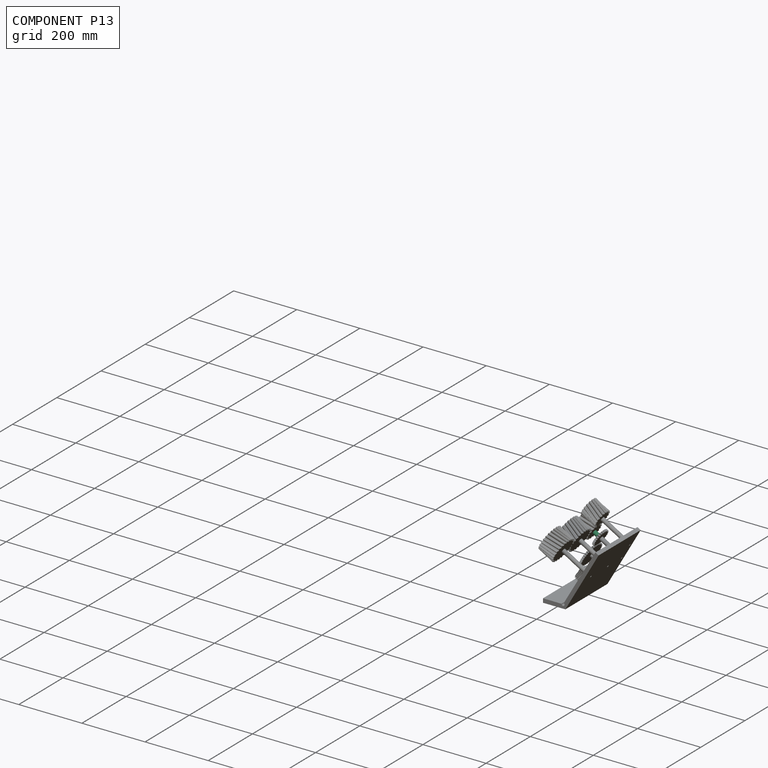
[diagram: component P13 — assembled]
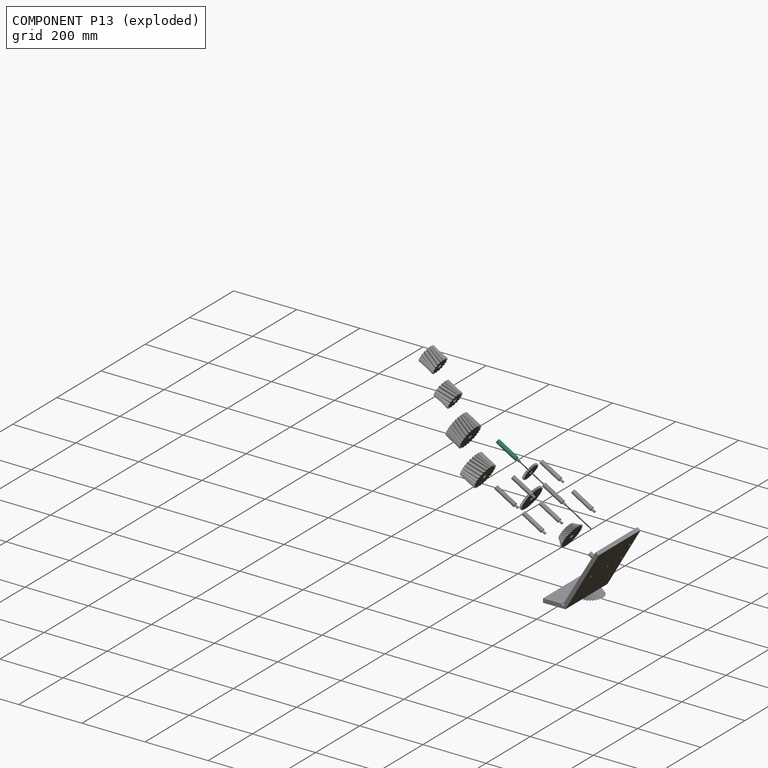
[diagram: component P13 — exploded]
COMPONENT P13 — same part as P1 (CADFS 00306252); its construction recipe is shown at P1.
Held by: REVOLUTE mate "Revolute 7" to P12; FASTENED mate "Fastened 7" to P7.
